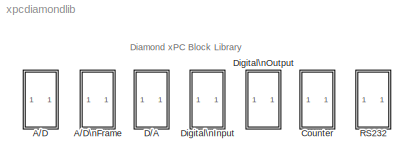
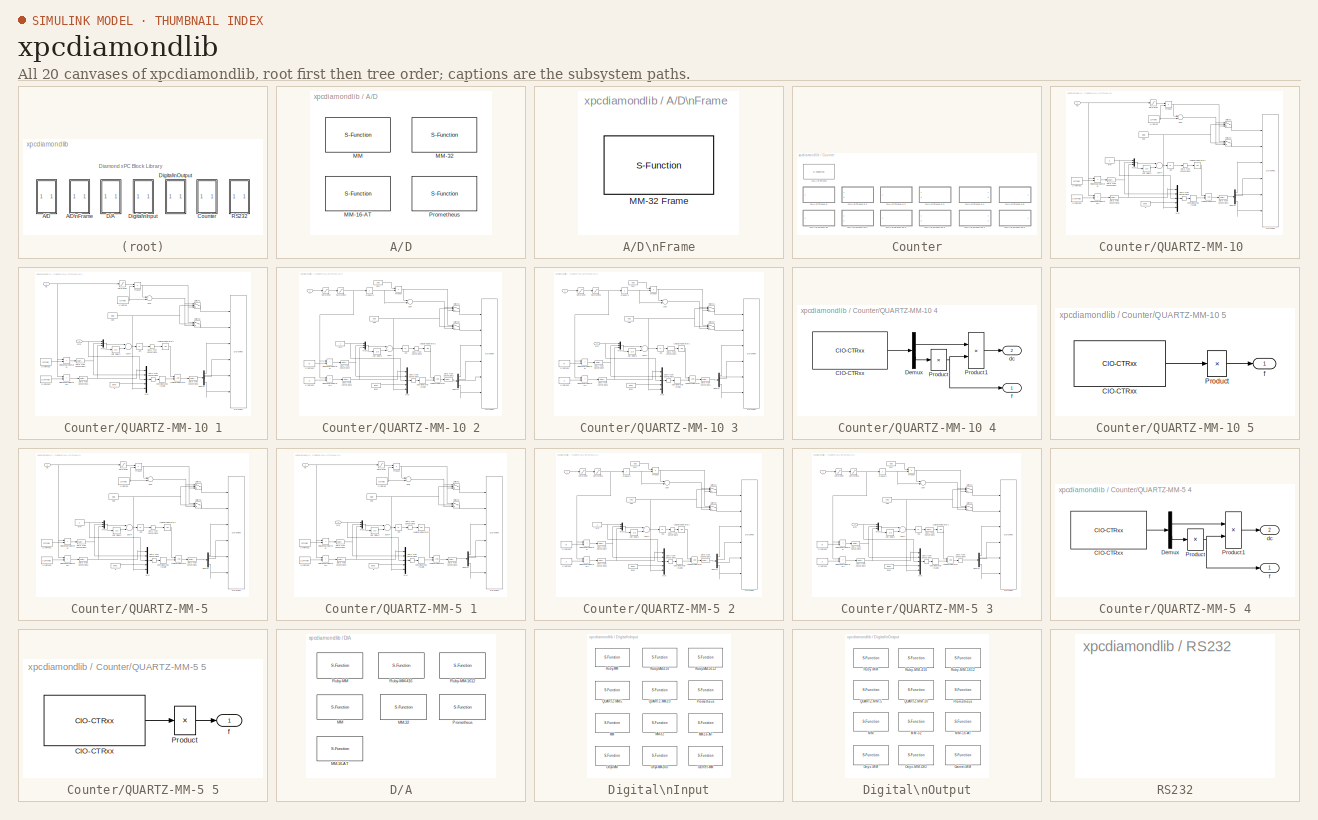
[diagram: thumbnail index - all 20 canvases of the model, root first then tree order]
MODEL xpcdiamondlib
KIND library
BLOCK [SubSystem] A//D
  MinAlgLoopOccurrences = off
  Ports = []
  PropExecContextAcrossSSBoundary = on
  RTWSystemCode = Auto
  TreatAsAtomicUnit = off
BLOCK [S-Function] A//D/MM 
  FunctionName = addiamondmm
  InitFcn = maddiamondmm(1)
  MaskCallbackString = |||||
  MaskDescription = MM\nDiamond\nAnalog Input
  MaskDisplay = disp('MM\\nDiamond\\nAnalog Input'); port_label('output', 1, '1');
  MaskEnableString = on,on,on,on,on,on
  MaskHelp = helpview(fullfile(docroot, 'mapfiles', 'xpc.map'), 'Diamond_MM_AD')
  MaskIconFrame = on
  MaskIconOpaque = on
  MaskIconRotate = none
  MaskIconUnits = autoscale
  MaskInitialization = phase = 2;\n[gain, offset, baseDec, maskDisplay, maskDescription] = maddiamondmm(phase, numChans, range, coupling, showStatus, sampleTime, base);\nset_param(gcb, 'MaskDescription', maskDescription);\nset_param(gcb, 'MaskDisplay', maskDisplay);\n\n\n
  MaskPromptString = Number of channels:|Range:|Coupling:|Show error status output (E)|Sample time:|Base address (e.g. 0x300):
  MaskSelfModifiable = on
  MaskStyleString = edit,popup(0 to 10V|0 to 5V|0 to 2V|0 to 1V|0 to Custom|-10V to 10V|-5V to 5V|-2.5V to 2.5V|-1V to 1V|-0.5V to 0.5V|-Custom to Custom),popup(16 single-ended channels|8 differential channels),checkbox,edit,edit
  MaskTabNameString = ,,,,,
  MaskToolTipString = on,on,on,on,on,on
  MaskTunableValueString = on,on,on,on,on,on
  MaskType = addiamondmm
  MaskValueString = 1|-5V to 5V|16 single-ended channels|off|0.001|0x300
  MaskVarAliasString = ,,,,,
  MaskVariables = numChans=@1;range=@2;coupling=@3;showStatus=@4;sampleTime=@5;base=&6;
  MaskVisibilityString = on,on,on,on,on,on
  Parameters = numChans,  gain, offset, showStatus, sampleTime, baseDec
  Ports = [0, 1]
BLOCK [S-Function] A//D/MM-16-AT 
  FunctionName = addsmm16at
  InitFcn = maddsmm16at(1)
  MaskCallbackString = ||||||
  MaskDescription = MM-16-AT\nDiamond\nAnalog Input
  MaskDisplay = disp('MM-16-AT\\nDiamond\\nAnalog Input'); port_label('output', 1, '1');
  MaskEnableString = on,on,on,on,on,on,on
  MaskHelp = helpview(fullfile(docroot, 'mapfiles', 'xpc.map'), 'Diamond_MM-16-AT_AD')
  MaskIconFrame = on
  MaskIconOpaque = on
  MaskIconRotate = none
  MaskIconUnits = autoscale
  MaskInitialization = phase = 2;\n[gain, offset, rangeCode, baseDec, maskDisplay, maskDescription] = maddsmm16at(phase, firstChan, numChans, range, coupling, showStatus, sampleTime, base);\nset_param(gcb, 'MaskDescription', maskDescription);\nset_param(gcb, 'MaskDisplay', maskDisplay);\n\n\n
  MaskPromptString = First channel:|Number of channels:|Range:|Coupling:|Show error status output (E)|Sample time:|Base address (e.g. 0x300):
  MaskSelfModifiable = on
  MaskStyleString = edit,edit,popup(0 to 10V|0 to 5V|0 to 2.5V|0 to 1.25V|-10V to 10V|-5V to 5V|-2.5V to 2.5V|-1.25V to 1.25V|-0.625V to 0.625V),popup(16 single-ended channels|8 differential channels),checkbox,edit,edit
  MaskTabNameString = ,,,,,,
  MaskToolTipString = on,on,on,on,on,on,on
  MaskTunableValueString = on,on,on,on,on,on,on
  MaskType = addiamondmm16at
  MaskValueString = 1|1|-5V to 5V|16 single-ended channels|off|0.001|0x300
  MaskVarAliasString = ,,,,,,
  MaskVariables = firstChan=@1;numChans=@2;range=@3;coupling=@4;showStatus=@5;sampleTime=@6;base=&7;
  MaskVisibilityString = on,on,on,on,on,on,on
  Parameters = firstChan, numChans,  gain, offset, rangeCode, showStatus, sampleTime, baseDec
  Ports = [0, 1]
BLOCK [S-Function] A//D/MM-32 
  FunctionName = addiamondmm32
  InitFcn = maddiamondmm32(1)
  MaskCallbackString = |||||
  MaskDescription = MM-32\nDiamond\nAnalog Input
  MaskDisplay = disp('MM-32\\nDiamond\\nAnalog Input'); port_label('output', 1, '1');
  MaskEnableString = on,on,on,on,on,on
  MaskHelp = helpview(fullfile(docroot, 'mapfiles', 'xpc.map'), 'Diamond_MM-32_AD')
  MaskIconFrame = on
  MaskIconOpaque = on
  MaskIconRotate = none
  MaskIconUnits = autoscale
  MaskInitialization = phase = 2;\n[baseDec, maskDisplay, maskDescription] = maddiamondmm32(phase, configuration, firstChan, numChans, range, base);\nset_param(gcb, 'MaskDescription', maskDescription);\nset_param(gcb, 'MaskDisplay', maskDisplay);\n\n\n
  MaskPromptString = Channel configuration|First channel number:|Number of channels:|Range |Sample time:|Base address (e.g. 0xd000):
  MaskSelfModifiable = on
  MaskStyleString = popup(1-32 SE|1-16 DI|1-8 SE  9-16 DI  17-24 SE ),edit,edit,popup(-10V to +10V|-5V to 5V|-2.5V to +2.5V|-1.25V to +1.25V|-0.625V to +0.625V|0 to 10V|0 to 5V|0 to 2.5V|0 to 1.25V),edit,edit
  MaskTabNameString = ,,,,,
  MaskToolTipString = on,on,on,on,on,on
  MaskTunableValueString = on,on,on,on,on,on
  MaskType = addiamondmm32
  MaskValueString = 1-32 SE|1|1|-10V to +10V|0.001|0x300
  MaskVarAliasString = ,,,,,
  MaskVariables = configuration=@1;firstChan=@2;numChans=@3;range=@4;sampleTime=@5;base=&6;
  MaskVisibilityString = on,on,on,on,on,on
  Parameters = firstChan, numChans,  range,  sampleTime, baseDec
  Ports = [0, 1]
BLOCK [S-Function] A//D/Prometheus 
  FunctionName = adprometheus
  InitFcn = madprometheus(1)
  MaskCallbackString = ||||||
  MaskDescription = Prometheus\nDiamond\nAnalog Input
  MaskDisplay = disp('Prometheus\\nDiamond\\nAnalog Input'); port_label('output', 1, '1');
  MaskEnableString = on,on,on,on,on,on,on
  MaskHelp = helpview(fullfile(docroot, 'mapfiles', 'xpc.map'), 'Diamond_Prometheus_AD')
  MaskIconFrame = on
  MaskIconOpaque = on
  MaskIconRotate = none
  MaskIconUnits = autoscale
  MaskInitialization = phase = 2;\n[gain, offset, control, baseDec, maskDisplay, maskDescription] = madprometheus(phase, firstChannel, numChannels, range, mux, base, showStatus);\nset_param(gcb, 'MaskDescription', maskDescription);\nset_param(gcb, 'MaskDisplay', maskDisplay);\n
  MaskPromptString = First channel:|Number of channels:|Range (J13 setting)|Input coupling (J13 setting)|Show error status output port (E)|Sample time:|Base address (e.g. 0x280):
  MaskSelfModifiable = on
  MaskStyleString = edit,edit,popup(+-10V|+-5V|+-2.5V|+-1.25V|0-10V|0-5V|0-2.5V),popup(Single Ended (16 channel)|Differential (8 channel)),checkbox,edit,edit
  MaskTabNameString = ,,,,,,
  MaskToolTipString = on,on,on,on,on,on,on
  MaskTunableValueString = on,on,on,on,on,on,on
  MaskType = adprometheus
  MaskValueString = 1|1|+-10V|Single Ended (16 channel)|off|.001|0x280
  MaskVarAliasString = ,,,,,,
  MaskVariables = firstChannel=@1;numChannels=@2;range=@3;mux=@4;showStatus=@5;sampleTime=@6;base=&7;
  MaskVisibilityString = on,on,on,on,on,on,on
  Parameters = firstChannel, numChannels, gain, offset, control, sampleTime, baseDec, showStatus
  Ports = [0, 1]
BLOCK [SubSystem] A//D\nFrame
  MinAlgLoopOccurrences = off
  Ports = []
  PropExecContextAcrossSSBoundary = on
  RTWSystemCode = Auto
  TreatAsAtomicUnit = off
BLOCK [S-Function] A//D\nFrame/MM-32 Frame 
  FunctionName = addiamondmm32frame
  InitFcn = maddiamondmm32frame(1);
  MaskCallbackString = ||||||||
  MaskDescription = MM-32 Frame\nDiamond\nAnalog Input
  MaskDisplay = disp('MM-32 Frame\\nDiamond\\nAnalog Input'); port_label('output', 1, '1');
  MaskEnableString = on,on,on,on,on,on,on,on,on
  MaskHelp = helpview(fullfile(docroot, 'mapfiles', 'xpc.map'), 'Diamond_MM-32-Frame_AD')
  MaskIconFrame = on
  MaskIconOpaque = on
  MaskIconRotate = none
  MaskIconUnits = autoscale
  MaskInitialization = phase = 2;\n[freq12, count1, count2, baseDec, maskDisplay, maskDescription] = ...\n	maddiamondmm32frame(phase, configuration, firstChan, numChans, numScans, scanInterval, scanTime, base);\nset_param(gcb, 'MaskDescription', maskDescription);\nset_param(gcb, 'MaskDisplay', maskDisplay);\n\n\n
  MaskPromptString = Channel configuration|Output signal type|Range |First channel number:|Number of channels:|Number of scans per frame:|Interval between conversions within a scan:|Interval between scans (seconds):|Base address (e.g. 0x300):
  MaskSelfModifiable = on
  MaskStyleString = popup(1-32 Single-Ended|1-16 Differential|1-8 and 17-24 Single-Ended;  9-16 Differential),popup(Vector|Frame),popup(-10V to +10V|-5V to 5V|-2.5V to +2.5V|-1.25V to +1.25V|-0.625V to +0.625V|0 to 10V|0 to 5V|0 to 2.5V|0 to 1.25V),edit,edit,edit,popup(5 microseconds|10 microseconds|15 microseconds|20 microseconds),edit,edit
  MaskTabNameString = ,,,,,,,,
  MaskToolTipString = on,on,on,on,on,on,on,on,on
  MaskTunableValueString = on,on,on,on,on,on,on,on,on
  MaskType = addiamondmm32
  MaskValueString = 1-32 Single-Ended|Vector|-10V to +10V|1|1|2|5 microseconds|0.001|0x300
  MaskVarAliasString = ,,,,,,,,
  MaskVariables = configuration=@1;outSigType=@2;range=@3;firstChan=@4;numChans=@5;numScans=@6;scanInterval=@7;scanTime=@8;base=&9;
  MaskVisibilityString = on,on,on,on,on,on,on,on,on
  Parameters = range,  firstChan, numChans,  numScans, scanInterval, freq12, count1, count2, outSigType, baseDec
  Ports = [0, 1]
  StartFcn = maddiamondmm32frame(1)
BLOCK [SubSystem] Counter
  MinAlgLoopOccurrences = off
  Ports = []
  PropExecContextAcrossSSBoundary = on
  RTWSystemCode = Auto
  TreatAsAtomicUnit = off
BLOCK [S-Function] Counter/QUARTZ-MM 
  FunctionName = ctramd9513isa
  MaskCallbackString = ||||||
  MaskDescription = QUARTZ-MM\nDiamond Systems\nAMD9513 Counter
  MaskDisplay = disp('AMD9513\\nCounter')
  MaskEnableString = on,on,on,on,on,on,on
  MaskHelp = helpview(fullfile(docroot, 'mapfiles', 'xpc.map'), 'Diamond_QUARTZ-MM_Counter')
  MaskIconFrame = on
  MaskIconOpaque = on
  MaskIconRotate = none
  MaskIconUnits = autoscale
  MaskInitialization = baseAddress=hex2dec(baseAddress(3:end));\n[io,mm, cms, initir, ir, termir]=mamd9513parse(mastermode, countermode, init, commands, term);
  MaskPromptString = Master mode structure:|Counter mode structure:|Initialization command structure:|Runtime command structure:|Termination command structure:|Sample time:|9513 chip base address (i.e. 0xd000):
  MaskSelfModifiable = on
  MaskStyleString = edit,edit,edit,edit,edit,edit,edit
  MaskTabNameString = ,,,,,,
  MaskToolTipString = on,on,on,on,on,on,on
  MaskTunableValueString = on,on,on,on,on,on,on
  MaskType = quartzmm10
  MaskValueString = []|[]|[]|[]|[]|0.001|'0x300'
  MaskVarAliasString = ,,,,,,
  MaskVariables = mastermode=@1;countermode=@2;init=@3;commands=@4;term=@5;ts=@6;baseAddress=@7;
  MaskVisibilityString = on,on,on,on,on,on,on
  Parameters = io, mm, cms, initir, ir, termir, ts, baseAddress
  Ports = []
BLOCK [SubSystem] Counter/QUARTZ-MM-10 
  MaskCallbackString = ||||||
  MaskDescription = QUARTZ-MM-10\nDiamond Systems\nPWM
  MaskDisplay = text(0.95,0.75,'QUARTZ-MM-10','horizontalAlignment','right');text(0.95,0.50,'Diamond Sys','horizontalAlignment','right');text(0.95,0.25,'PWM','horizontalAlignment','right');port_label('input',1,[num2str(counterin),' (dc)'] );
  MaskEnableString = on,on,on,on,on,on,on
  MaskHelp = helpview(fullfile(docroot, 'mapfiles', 'xpc.map'), 'Diamond_QUARTZ-MM-10_Counter')
  MaskIconFrame = on
  MaskIconOpaque = on
  MaskIconRotate = none
  MaskIconUnits = normalized
  MaskInitialization = init_arm=0;\ninitduty=0.5;\ncounter=counterin;\nif counter>5\ncounter=counter-5;\nbaseAddress=['0x',dec2hex(hex2dec(baseAddress(3:end))+4)];\nend;\n[MasterMode, CounterMode, Init, Runtime, Term] =pwmarm_amd9513(counter, freq_base, freq, initduty, level, init_arm);\nlevel=level-1;\nseq=seq-1;  <repeated x4 — deduplicated; at blocks: QUARTZ-MM-10, QUARTZ-MM-10 1, QUARTZ-MM-5, QUARTZ-MM-5 1>
  MaskPromptString = Counter:|Frequency base:|Relative output frequency:|Level sequence of square wave:|Level when disarmed:|Sample time:|Base address (i.e. 0xd000):
  MaskSelfModifiable = on
  MaskStyleString = popup(1|2|3|4|5|6|7|8|9|10),popup(F1=4MHz|F2=400KHz|F3=40kHz|F4=4kHz|F5=400Hz),edit,popup(High - Low|Low- High),popup(Low|High),edit,edit
  MaskTabNameString = ,,,,,,
  MaskToolTipString = on,on,on,on,on,on,on
  MaskTunableValueString = on,on,on,on,on,on,on
  MaskType = PWM
  MaskValueString = 1|F1=4MHz|0.001|High - Low|High|0.001|0x300
  MaskVarAliasString = ,,,,,,
  MaskVariables = counterin=@1;freq_base=@2;freq=@3;seq=@4;level=@5;Ts=@6;baseAddress=&7;
  MaskVisibilityString = on,on,on,on,on,on,on
  MinAlgLoopOccurrences = off
  Ports = [1]
  PropExecContextAcrossSSBoundary = on
  RTWSystemCode = Auto
  TreatAsAtomicUnit = off
BLOCK [Constant] Counter/QUARTZ-MM-10 /1//relFreq
  Value = 1/freq
BLOCK [Constant] Counter/QUARTZ-MM-10 /1//relFreq1
  Value = 2*freq
BLOCK [Constant] Counter/QUARTZ-MM-10 /1//relFreq2
  Value = 1-2*freq
BLOCK [Abs] Counter/QUARTZ-MM-10 /Abs
BLOCK [Reference] Counter/QUARTZ-MM-10 /CIO-CTRxx   REF=xpcmeasurementcomputinglib/Counter/CIO-CTRxx 
  Ports = [6]
  SourceBlock = xpcmeasurementcomputinglib/Counter/CIO-CTRxx
  SourceType = cioctrxx
  baseAddress = baseAddress
  commands = Runtime
  countermode = CounterMode
  init = Init
  mastermode = MasterMode
  term = Term
  ts = Ts
BLOCK [CombinatorialLogic] Counter/QUARTZ-MM-10 /Combinatorial \nLogic
  TruthTable = [0,0,1,0;0,0,1,0;0,0,0,1;0,0,0,1;0,1,0,0;1,0,0,0;0,1,0,0;1,0,0,0;0,0,1,0;0,0,1,0;0,0,0,1;0,0,0,1;0,0,1,0;0,0,1,0;0,0,1,0;0,0,1,0;0,0,1,0;0,0,1,0;0,0,0,1;0,0,0,1;0,0,0,1;0,0,0,1;0,0,0,1;0,0,0,1;0,0,0,0;0,0,0,0;0,0,0,0;0,0,0,0;0,0,0,0;0,0,0,0;0,0,0,0;0,0,0,0]  <repeated x8 — deduplicated; at blocks: Combinatorial \nLogic>
BLOCK [DataTypeConversion] Counter/QUARTZ-MM-10 /Data Type Conversion1
BLOCK [DataTypeConversion] Counter/QUARTZ-MM-10 /Data Type Conversion2
BLOCK [DataTypeConversion] Counter/QUARTZ-MM-10 /Data Type Conversion3
BLOCK [DataTypeConversion] Counter/QUARTZ-MM-10 /Data Type Conversion4
  OutDataTypeMode = double
BLOCK [DataTypeConversion] Counter/QUARTZ-MM-10 /Data Type Conversion5
  OutDataTypeMode = double
BLOCK [Demux] Counter/QUARTZ-MM-10 /Demux
  Ports = [1, 4]
BLOCK [Logic] Counter/QUARTZ-MM-10 /Logical\nOperator
  Ports = [2, 1]
BLOCK [Logic] Counter/QUARTZ-MM-10 /Logical\nOperator1
  Inputs = 1
  Operator = OR
  Ports = [1, 1]
BLOCK [Mux] Counter/QUARTZ-MM-10 /Mux
  DisplayOption = bar
  Inputs = 5
  Ports = [5, 1]
BLOCK [Mux] Counter/QUARTZ-MM-10 /Mux1
  DisplayOption = bar
  Inputs = 3
  Ports = [3, 1]
BLOCK [Product] Counter/QUARTZ-MM-10 /Product
  Ports = [2, 1]
  RndMeth = Floor
BLOCK [RelationalOperator] Counter/QUARTZ-MM-10 /Relational\nOperator
  Operator = <
BLOCK [RelationalOperator] Counter/QUARTZ-MM-10 /Relational\nOperator1
  Operator = >
BLOCK [Saturate] Counter/QUARTZ-MM-10 /Saturation
  LowerLimit = 2*freq
  UpperLimit = 1-2*freq
  ZeroCross = off
BLOCK [Sum] Counter/QUARTZ-MM-10 /Sum
  Inputs = -+
  Ports = [2, 1]
BLOCK [Sum] Counter/QUARTZ-MM-10 /Sum4
  Inputs = +-
  Ports = [2, 1]
BLOCK [Switch] Counter/QUARTZ-MM-10 /Switch1
  SaturateOnIntegerOverflow = off
  Threshold = 0.5
BLOCK [Switch] Counter/QUARTZ-MM-10 /Switch2
  SaturateOnIntegerOverflow = off
  Threshold = 0.5
BLOCK [UnitDelay] Counter/QUARTZ-MM-10 /Unit Delay2
  SampleTime = Ts
  X0 = 2
BLOCK [Constant] Counter/QUARTZ-MM-10 /arm
BLOCK [Inport] Counter/QUARTZ-MM-10 /dc
  IconDisplay = Port number
  LatchInput = off
BLOCK [Constant] Counter/QUARTZ-MM-10 /g
  Value = level
BLOCK [Constant] Counter/QUARTZ-MM-10 /seq
  Value = seq
BLOCK [SubSystem] Counter/QUARTZ-MM-10 1
  MaskCallbackString = ||||||
  MaskDescription = QUARTZ-MM-10\nDiamond Systems\nPWM & ARM
  MaskDisplay = text(0.95,0.75,'QUARTZ-MM-10','horizontalAlignment','right');text(0.95,0.50,'Diamond Sys','horizontalAlignment','right');text(0.95,0.25,'PWM & ARM','horizontalAlignment','right');port_label('input',1,[num2str(counterin),' (dc)'] );port_label('input',2,[num2str(counterin),' (arm)'] );
  MaskEnableString = on,on,on,on,on,on,on
  MaskHelp = helpview(fullfile(docroot, 'mapfiles', 'xpc.map'), 'Diamond_QUARTZ-MM-10-1_Counter')
  MaskIconFrame = on
  MaskIconOpaque = on
  MaskIconRotate = none
  MaskIconUnits = normalized
  MaskPromptString = Counter:|Frequency base:|Relative output frequency:|Level sequence of square wave:|Level when disarmed:|Sample time:|Base address (i.e. 0xd000):
  MaskSelfModifiable = on
  MaskStyleString = popup(1|2|3|4|5|6|7|8|9|10),popup(F1=4MHz|F2=400KHz|F3=40kHz|F4=4kHz|F5=400Hz),edit,popup(High - Low|Low- High),popup(Low|High),edit,edit
  MaskTabNameString = ,,,,,,
  MaskToolTipString = on,on,on,on,on,on,on
  MaskTunableValueString = on,on,on,on,on,on,on
  MaskType = PWM
  MaskValueString = 1|F1=4MHz|0.001|High - Low|High|0.001|0x300
  MaskVarAliasString = ,,,,,,
  MaskVariables = counterin=@1;freq_base=@2;freq=@3;seq=@4;level=@5;Ts=@6;baseAddress=&7;
  MaskVisibilityString = on,on,on,on,on,on,on
  MinAlgLoopOccurrences = off
  Ports = [2]
  PropExecContextAcrossSSBoundary = on
  RTWSystemCode = Auto
  TreatAsAtomicUnit = off
BLOCK [Constant] Counter/QUARTZ-MM-10 1/1//relFreq
  Value = 1/freq
BLOCK [Constant] Counter/QUARTZ-MM-10 1/1//relFreq1
  Value = 2*freq
BLOCK [Constant] Counter/QUARTZ-MM-10 1/1//relFreq2
  Value = 1-2*freq
BLOCK [Abs] Counter/QUARTZ-MM-10 1/Abs
BLOCK [Reference] Counter/QUARTZ-MM-10 1/CIO-CTRxx   REF=xpcmeasurementcomputinglib/Counter/CIO-CTRxx 
  Ports = [6]
  SourceBlock = xpcmeasurementcomputinglib/Counter/CIO-CTRxx
  SourceType = cioctrxx
  baseAddress = baseAddress
  commands = Runtime
  countermode = CounterMode
  init = Init
  mastermode = MasterMode
  term = Term
  ts = Ts
BLOCK [CombinatorialLogic] Counter/QUARTZ-MM-10 1/Combinatorial \nLogic
BLOCK [DataTypeConversion] Counter/QUARTZ-MM-10 1/Data Type Conversion1
  OutDataTypeMode = double
BLOCK [DataTypeConversion] Counter/QUARTZ-MM-10 1/Data Type Conversion2
BLOCK [DataTypeConversion] Counter/QUARTZ-MM-10 1/Data Type Conversion3
BLOCK [DataTypeConversion] Counter/QUARTZ-MM-10 1/Data Type Conversion4
  OutDataTypeMode = double
BLOCK [DataTypeConversion] Counter/QUARTZ-MM-10 1/Data Type Conversion5
BLOCK [Demux] Counter/QUARTZ-MM-10 1/Demux
  Ports = [1, 4]
BLOCK [Logic] Counter/QUARTZ-MM-10 1/Logical\nOperator
  Ports = [2, 1]
BLOCK [Logic] Counter/QUARTZ-MM-10 1/Logical\nOperator1
  Inputs = 1
  Operator = OR
  Ports = [1, 1]
BLOCK [Mux] Counter/QUARTZ-MM-10 1/Mux
  DisplayOption = bar
  Inputs = 5
  Ports = [5, 1]
BLOCK [Mux] Counter/QUARTZ-MM-10 1/Mux1
  DisplayOption = bar
  Inputs = 3
  Ports = [3, 1]
BLOCK [Product] Counter/QUARTZ-MM-10 1/Product
  Ports = [2, 1]
  RndMeth = Floor
BLOCK [RelationalOperator] Counter/QUARTZ-MM-10 1/Relational\nOperator
  Operator = <
BLOCK [RelationalOperator] Counter/QUARTZ-MM-10 1/Relational\nOperator1
  Operator = >
BLOCK [Saturate] Counter/QUARTZ-MM-10 1/Saturation
  LowerLimit = 2*freq
  UpperLimit = 1-2*freq
  ZeroCross = off
BLOCK [Sum] Counter/QUARTZ-MM-10 1/Sum
  Inputs = -+
  Ports = [2, 1]
BLOCK [Sum] Counter/QUARTZ-MM-10 1/Sum4
  Inputs = +-
  Ports = [2, 1]
BLOCK [Switch] Counter/QUARTZ-MM-10 1/Switch1
  SaturateOnIntegerOverflow = off
  Threshold = 0.5
BLOCK [Switch] Counter/QUARTZ-MM-10 1/Switch2
  SaturateOnIntegerOverflow = off
  Threshold = 0.5
BLOCK [UnitDelay] Counter/QUARTZ-MM-10 1/Unit Delay2
  SampleTime = Ts
  X0 = 2
BLOCK [Inport] Counter/QUARTZ-MM-10 1/arm
  IconDisplay = Port number
  LatchInput = off
  Port = 2
BLOCK [Inport] Counter/QUARTZ-MM-10 1/dc
  IconDisplay = Port number
  LatchInput = off
BLOCK [Constant] Counter/QUARTZ-MM-10 1/g
  Value = level
BLOCK [Constant] Counter/QUARTZ-MM-10 1/seq
  Value = seq
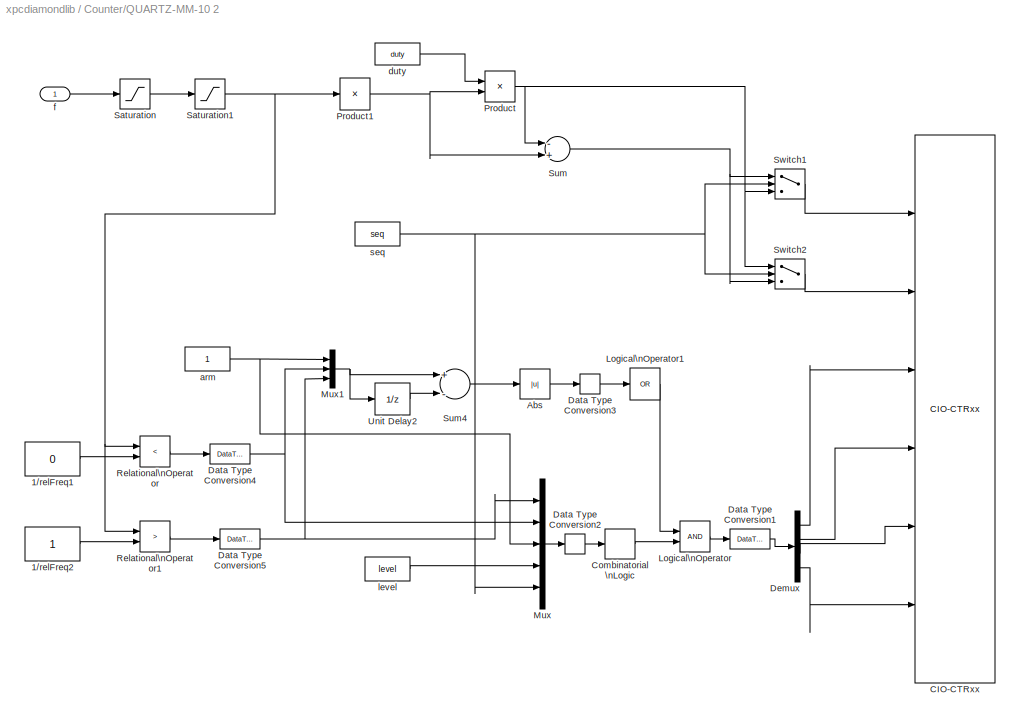
BLOCK [SubSystem] Counter/QUARTZ-MM-10 2
  MaskCallbackString = ||||||
  MaskDescription = QUARTZ-MM-10\nDiamond Systems\nFM
  MaskDisplay = text(0.95,0.75,'QUARTZ-MM-10','horizontalAlignment','right');text(0.95,0.50,'Diamond Sys','horizontalAlignment','right');text(0.95,0.25,'FM','horizontalAlignment','right');port_label('input',1,[num2str(counterin),' (f)'] );
  MaskEnableString = on,on,on,on,on,on,on
  MaskHelp = helpview(fullfile(docroot, 'mapfiles', 'xpc.map'), 'Diamond_QUARTZ-MM-10-2_Counter')
  MaskIconFrame = on
  MaskIconOpaque = on
  MaskIconRotate = none
  MaskIconUnits = normalized
  MaskInitialization = init_arm=0;\ninitfreq=0.005;\ncounter=counterin;\nif counter>5\ncounter=counter-5;\nbaseAddress=['0x',dec2hex(hex2dec(baseAddress(3:end))+4)];\nend;\n[MasterMode, CounterMode, Init, Runtime, Term] =fmarm_amd9513(counter, freq_base, duty, initfreq, level, init_arm);\nlevel=level-1;\nseq=seq-1;  <repeated x4 — deduplicated; at blocks: QUARTZ-MM-10 2, QUARTZ-MM-10 3, QUARTZ-MM-5 2, QUARTZ-MM-5 3>
  MaskPromptString = Counter:|Frequency base:|Output duty cycle:|Level sequence of square wave:|Level when disarmed:|Sample time:|Base address (i.e. 0xd000):
  MaskSelfModifiable = on
  MaskStyleString = popup(1|2|3|4|5|6|7|8|9|10),popup(F1=4MHz|F2=400KHz|F3=40kHz|F4=4kHz|F5=400Hz),edit,popup(High - Low|Low- High),popup(Low|High),edit,edit
  MaskTabNameString = ,,,,,,
  MaskToolTipString = on,on,on,on,on,on,on
  MaskTunableValueString = on,on,on,on,on,on,on
  MaskType = PWM
  MaskValueString = 1|F1=4MHz|0.001|High - Low|High|0.001|0x300
  MaskVarAliasString = ,,,,,,
  MaskVariables = counterin=@1;freq_base=@2;duty=@3;seq=@4;level=@5;Ts=@6;baseAddress=&7;
  MaskVisibilityString = on,on,on,on,on,on,on
  MinAlgLoopOccurrences = off
  Ports = [1]
  PropExecContextAcrossSSBoundary = on
  RTWSystemCode = Auto
  TreatAsAtomicUnit = off
BLOCK [Constant] Counter/QUARTZ-MM-10 2/1//relFreq1
  Value = 0
BLOCK [Constant] Counter/QUARTZ-MM-10 2/1//relFreq2
BLOCK [Abs] Counter/QUARTZ-MM-10 2/Abs
BLOCK [Reference] Counter/QUARTZ-MM-10 2/CIO-CTRxx   REF=xpcmeasurementcomputinglib/Counter/CIO-CTRxx 
  Ports = [6]
  SourceBlock = xpcmeasurementcomputinglib/Counter/CIO-CTRxx
  SourceType = cioctrxx
  baseAddress = baseAddress
  commands = Runtime
  countermode = CounterMode
  init = Init
  mastermode = MasterMode
  term = Term
  ts = Ts
BLOCK [CombinatorialLogic] Counter/QUARTZ-MM-10 2/Combinatorial \nLogic
BLOCK [DataTypeConversion] Counter/QUARTZ-MM-10 2/Data Type Conversion1
BLOCK [DataTypeConversion] Counter/QUARTZ-MM-10 2/Data Type Conversion2
BLOCK [DataTypeConversion] Counter/QUARTZ-MM-10 2/Data Type Conversion3
BLOCK [DataTypeConversion] Counter/QUARTZ-MM-10 2/Data Type Conversion4
  OutDataTypeMode = double
BLOCK [DataTypeConversion] Counter/QUARTZ-MM-10 2/Data Type Conversion5
  OutDataTypeMode = double
BLOCK [Demux] Counter/QUARTZ-MM-10 2/Demux
  Ports = [1, 4]
BLOCK [Logic] Counter/QUARTZ-MM-10 2/Logical\nOperator
  Ports = [2, 1]
BLOCK [Logic] Counter/QUARTZ-MM-10 2/Logical\nOperator1
  Inputs = 1
  Operator = OR
  Ports = [1, 1]
BLOCK [Mux] Counter/QUARTZ-MM-10 2/Mux
  DisplayOption = bar
  Inputs = 5
  Ports = [5, 1]
BLOCK [Mux] Counter/QUARTZ-MM-10 2/Mux1
  DisplayOption = bar
  Inputs = 3
  Ports = [3, 1]
BLOCK [Product] Counter/QUARTZ-MM-10 2/Product
  Ports = [2, 1]
  RndMeth = Floor
BLOCK [Product] Counter/QUARTZ-MM-10 2/Product1
  Inputs = /
  Ports = [1, 1]
  RndMeth = Floor
BLOCK [RelationalOperator] Counter/QUARTZ-MM-10 2/Relational\nOperator
  Operator = <
BLOCK [RelationalOperator] Counter/QUARTZ-MM-10 2/Relational\nOperator1
  Operator = >
BLOCK [Saturate] Counter/QUARTZ-MM-10 2/Saturation
  LowerLimit = duty/(2^16-1)
  UpperLimit = duty/2
  ZeroCross = off
BLOCK [Saturate] Counter/QUARTZ-MM-10 2/Saturation1
  LowerLimit = (1-duty)/(2^16-1)
  UpperLimit = (1-duty)/2
  ZeroCross = off
BLOCK [Sum] Counter/QUARTZ-MM-10 2/Sum
  Inputs = -+
  Ports = [2, 1]
BLOCK [Sum] Counter/QUARTZ-MM-10 2/Sum4
  Inputs = +-
  Ports = [2, 1]
BLOCK [Switch] Counter/QUARTZ-MM-10 2/Switch1
  SaturateOnIntegerOverflow = off
  Threshold = 0.5
BLOCK [Switch] Counter/QUARTZ-MM-10 2/Switch2
  SaturateOnIntegerOverflow = off
  Threshold = 0.5
BLOCK [UnitDelay] Counter/QUARTZ-MM-10 2/Unit Delay2
  SampleTime = Ts
  X0 = 2
BLOCK [Constant] Counter/QUARTZ-MM-10 2/arm
BLOCK [Constant] Counter/QUARTZ-MM-10 2/duty
  Value = duty
BLOCK [Inport] Counter/QUARTZ-MM-10 2/f
  IconDisplay = Port number
  LatchInput = off
BLOCK [Constant] Counter/QUARTZ-MM-10 2/level
  Value = level
BLOCK [Constant] Counter/QUARTZ-MM-10 2/seq
  Value = seq
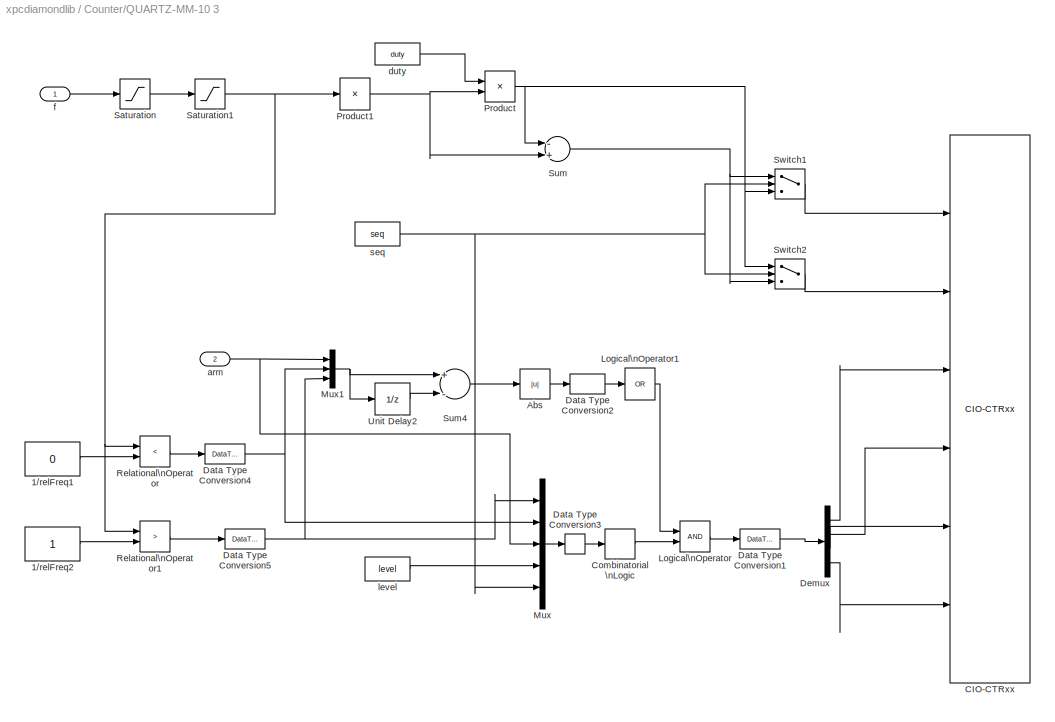
BLOCK [SubSystem] Counter/QUARTZ-MM-10 3
  MaskCallbackString = ||||||
  MaskDescription = QUARTZ-MM-10\nDiamond Systems\nFM & ARM
  MaskDisplay = text(0.95,0.75,'QUARTZ-MM-10','horizontalAlignment','right');text(0.95,0.50,'Diamond Sys','horizontalAlignment','right');text(0.95,0.25,'FM & ARM','horizontalAlignment','right');port_label('input',1,[num2str(counterin),' (f)'] );port_label('input',2,[num2str(counterin),' (arm)'] );
  MaskEnableString = on,on,on,on,on,on,on
  MaskHelp = helpview(fullfile(docroot, 'mapfiles', 'xpc.map'), 'Diamond_QUARTZ-MM-10-3_Counter')
  MaskIconFrame = on
  MaskIconOpaque = on
  MaskIconRotate = none
  MaskIconUnits = normalized
  MaskPromptString = Counter:|Frequency base:|Output duty cycle:|Level sequence of square wave:|Level when disarmed:|Sample time:|Base address (i.e. 0xd000):
  MaskSelfModifiable = on
  MaskStyleString = popup(1|2|3|4|5|6|7|8|9|10),popup(F1=4MHz|F2=400KHz|F3=40kHz|F4=4kHz|F5=400Hz),edit,popup(High - Low|Low- High),popup(Low|High),edit,edit
  MaskTabNameString = ,,,,,,
  MaskToolTipString = on,on,on,on,on,on,on
  MaskTunableValueString = on,on,on,on,on,on,on
  MaskType = FM
  MaskValueString = 1|F1=4MHz|0.001|High - Low|High|0.001|0x300
  MaskVarAliasString = ,,,,,,
  MaskVariables = counterin=@1;freq_base=@2;duty=@3;seq=@4;level=@5;Ts=@6;baseAddress=&7;
  MaskVisibilityString = on,on,on,on,on,on,on
  MinAlgLoopOccurrences = off
  Ports = [2]
  PropExecContextAcrossSSBoundary = on
  RTWSystemCode = Auto
  TreatAsAtomicUnit = off
BLOCK [Constant] Counter/QUARTZ-MM-10 3/1//relFreq1
  Value = 0
BLOCK [Constant] Counter/QUARTZ-MM-10 3/1//relFreq2
BLOCK [Abs] Counter/QUARTZ-MM-10 3/Abs
BLOCK [Reference] Counter/QUARTZ-MM-10 3/CIO-CTRxx   REF=xpcmeasurementcomputinglib/Counter/CIO-CTRxx 
  Ports = [6]
  SourceBlock = xpcmeasurementcomputinglib/Counter/CIO-CTRxx
  SourceType = cioctrxx
  baseAddress = baseAddress
  commands = Runtime
  countermode = CounterMode
  init = Init
  mastermode = MasterMode
  term = Term
  ts = Ts
BLOCK [CombinatorialLogic] Counter/QUARTZ-MM-10 3/Combinatorial \nLogic
BLOCK [DataTypeConversion] Counter/QUARTZ-MM-10 3/Data Type Conversion1
BLOCK [DataTypeConversion] Counter/QUARTZ-MM-10 3/Data Type Conversion2
BLOCK [DataTypeConversion] Counter/QUARTZ-MM-10 3/Data Type Conversion3
BLOCK [DataTypeConversion] Counter/QUARTZ-MM-10 3/Data Type Conversion4
  OutDataTypeMode = double
BLOCK [DataTypeConversion] Counter/QUARTZ-MM-10 3/Data Type Conversion5
  OutDataTypeMode = double
BLOCK [Demux] Counter/QUARTZ-MM-10 3/Demux
  Ports = [1, 4]
BLOCK [Logic] Counter/QUARTZ-MM-10 3/Logical\nOperator
  Ports = [2, 1]
BLOCK [Logic] Counter/QUARTZ-MM-10 3/Logical\nOperator1
  Inputs = 1
  Operator = OR
  Ports = [1, 1]
BLOCK [Mux] Counter/QUARTZ-MM-10 3/Mux
  DisplayOption = bar
  Inputs = 5
  Ports = [5, 1]
BLOCK [Mux] Counter/QUARTZ-MM-10 3/Mux1
  DisplayOption = bar
  Inputs = 3
  Ports = [3, 1]
BLOCK [Product] Counter/QUARTZ-MM-10 3/Product
  Ports = [2, 1]
  RndMeth = Floor
BLOCK [Product] Counter/QUARTZ-MM-10 3/Product1
  Inputs = /
  Ports = [1, 1]
  RndMeth = Floor
BLOCK [RelationalOperator] Counter/QUARTZ-MM-10 3/Relational\nOperator
  Operator = <
BLOCK [RelationalOperator] Counter/QUARTZ-MM-10 3/Relational\nOperator1
  Operator = >
BLOCK [Saturate] Counter/QUARTZ-MM-10 3/Saturation
  LowerLimit = duty/(2^16-1)
  UpperLimit = duty/2
  ZeroCross = off
BLOCK [Saturate] Counter/QUARTZ-MM-10 3/Saturation1
  LowerLimit = (1-duty)/(2^16-1)
  UpperLimit = (1-duty)/2
  ZeroCross = off
BLOCK [Sum] Counter/QUARTZ-MM-10 3/Sum
  Inputs = -+
  Ports = [2, 1]
BLOCK [Sum] Counter/QUARTZ-MM-10 3/Sum4
  Inputs = +-
  Ports = [2, 1]
BLOCK [Switch] Counter/QUARTZ-MM-10 3/Switch1
  SaturateOnIntegerOverflow = off
  Threshold = 0.5
BLOCK [Switch] Counter/QUARTZ-MM-10 3/Switch2
  SaturateOnIntegerOverflow = off
  Threshold = 0.5
BLOCK [UnitDelay] Counter/QUARTZ-MM-10 3/Unit Delay2
  SampleTime = Ts
  X0 = 2
BLOCK [Inport] Counter/QUARTZ-MM-10 3/arm
  IconDisplay = Port number
  LatchInput = off
  Port = 2
BLOCK [Constant] Counter/QUARTZ-MM-10 3/duty
  Value = duty
BLOCK [Inport] Counter/QUARTZ-MM-10 3/f
  IconDisplay = Port number
  LatchInput = off
BLOCK [Constant] Counter/QUARTZ-MM-10 3/level
  Value = level
BLOCK [Constant] Counter/QUARTZ-MM-10 3/seq
  Value = seq
BLOCK [SubSystem] Counter/QUARTZ-MM-10 4
  MaskCallbackString = |||
  MaskDescription = QUARTZ-MM-10\nDiamond Systems\nPWM capture
  MaskDisplay = text(0.05,0.75,'QUARTZ-MM-10','horizontalAlignment','left');text(0.05,0.50,'Diamond Sys','horizontalAlignment','left');text(0.05,0.25,'PWM capture','horizontalAlignment','left');port_label('output',1,[num2str(counterdisp),' (f)'] );port_label('output',2,[num2str(counterdisp+1),' (dc)'] );
  MaskEnableString = on,on,on,on
  MaskHelp = helpview(fullfile(docroot, 'mapfiles', 'xpc.map'), 'Diamond_QUARTZ-MM-10-4_Counter')
  MaskIconFrame = on
  MaskIconOpaque = on
  MaskIconRotate = none
  MaskIconUnits = normalized
  MaskInitialization = counter = counterin;\ncounterdisp = counterin;\nif counter > 4\ncounter = counter - 4;\ncounterdisp = counterdisp + 1;\nbaseAddress=['0x',dec2hex(hex2dec(baseAddress(3:end))+4)];\nend;\n[MasterMode, CounterMode, Init, Runtime, Term] =pwmcap_amd9513(counter, freq_base);\n
  MaskPromptString = Counter:|Frequency base:|Sample time:|Base address (i.e. 0xd000):
  MaskSelfModifiable = on
  MaskStyleString = popup(1&2|2&3|3&4|4&5|6&7|7&8|8&9|9&10),popup(F1=4MHz|F2=400KHz|F3=40kHz|F4=4kHz|F5=400Hz),edit,edit
  MaskTabNameString = ,,,
  MaskToolTipString = on,on,on,on
  MaskTunableValueString = on,on,on,on
  MaskType = PWMcap
  MaskValueString = 1&2|F1=4MHz|0.001|0x300
  MaskVarAliasString = ,,,
  MaskVariables = counterin=@1;freq_base=@2;Ts=@3;baseAddress=&4;
  MaskVisibilityString = on,on,on,on
  MinAlgLoopOccurrences = off
  Ports = [0, 2]
  PropExecContextAcrossSSBoundary = on
  RTWSystemCode = Auto
  TreatAsAtomicUnit = off
BLOCK [Reference] Counter/QUARTZ-MM-10 4/CIO-CTRxx   REF=xpcmeasurementcomputinglib/Counter/CIO-CTRxx 
  Ports = [0, 1]
  SourceBlock = xpcmeasurementcomputinglib/Counter/CIO-CTRxx
  SourceType = cioctrxx
  baseAddress = baseAddress
  commands = Runtime
  countermode = CounterMode
  init = Init
  mastermode = MasterMode
  term = Term
  ts = Ts
BLOCK [Demux] Counter/QUARTZ-MM-10 4/Demux
  Outputs = 2
  Ports = [1, 2]
BLOCK [Product] Counter/QUARTZ-MM-10 4/Product
  Inputs = /
  Ports = [1, 1]
  RndMeth = Floor
BLOCK [Product] Counter/QUARTZ-MM-10 4/Product1
  Inputs = **
  Ports = [2, 1]
  RndMeth = Floor
BLOCK [Outport] Counter/QUARTZ-MM-10 4/dc
  BusOutputAsStruct = off
  IconDisplay = Port number
  Port = 2
BLOCK [Outport] Counter/QUARTZ-MM-10 4/f
  BusOutputAsStruct = off
  IconDisplay = Port number
BLOCK [SubSystem] Counter/QUARTZ-MM-10 5
  MaskCallbackString = |||
  MaskDescription = QUARTZ-MM-10\nDiamond Systems\nFrequency capture
  MaskDisplay = text(0.05,0.75,'QUARTZ-MM-10','horizontalAlignment','left');text(0.05,0.50,'Diamond Sys','horizontalAlignment','left');text(0.05,0.25,'Freq. capture','horizontalAlignment','left');port_label('output',1,[num2str(counterin),' (f)'] );
  MaskEnableString = on,on,on,on
  MaskHelp = helpview(fullfile(docroot, 'mapfiles', 'xpc.map'), 'Diamond_QUARTZ-MM-10-5_Counter')
  MaskIconFrame = on
  MaskIconOpaque = on
  MaskIconRotate = none
  MaskIconUnits = normalized
  MaskInitialization = counter=counterin;\nif counter>5\ncounter=counter-5;\nbaseAddress=['0x',dec2hex(hex2dec(baseAddress(3:end))+4)];\nend;\n[MasterMode, CounterMode, Init, Runtime, Term] =freqcap_amd9513(counter, freq_base);\n
  MaskPromptString = Counter:|Frequency base:|Sample time:|Base address (i.e. 0xd000):
  MaskSelfModifiable = on
  MaskStyleString = popup(1|2|3|4|5|6|7|8|9|10),popup(F1=4MHz|F2=400KHz|F3=40kHz|F4=4kHz|F5=400Hz),edit,edit
  MaskTabNameString = ,,,
  MaskToolTipString = on,on,on,on
  MaskTunableValueString = on,on,on,on
  MaskType = FREQcap
  MaskValueString = 1|F1=4MHz|0.001|0x300
  MaskVarAliasString = ,,,
  MaskVariables = counterin=@1;freq_base=@2;Ts=@3;baseAddress=&4;
  MaskVisibilityString = on,on,on,on
  MinAlgLoopOccurrences = off
  Ports = [0, 1]
  PropExecContextAcrossSSBoundary = on
  RTWSystemCode = Auto
  TreatAsAtomicUnit = off
BLOCK [Reference] Counter/QUARTZ-MM-10 5/CIO-CTRxx   REF=xpcmeasurementcomputinglib/Counter/CIO-CTRxx 
  Ports = [0, 1]
  SourceBlock = xpcmeasurementcomputinglib/Counter/CIO-CTRxx
  SourceType = cioctrxx
  baseAddress = baseAddress
  commands = Runtime
  countermode = CounterMode
  init = Init
  mastermode = MasterMode
  term = Term
  ts = Ts
BLOCK [Product] Counter/QUARTZ-MM-10 5/Product
  Inputs = /
  Ports = [1, 1]
  RndMeth = Floor
BLOCK [Outport] Counter/QUARTZ-MM-10 5/f
  BusOutputAsStruct = off
  IconDisplay = Port number
BLOCK [SubSystem] Counter/QUARTZ-MM-5 
  MaskCallbackString = ||||||
  MaskDescription = QUARTZ-MM-5\nDiamond Systems\nPWM
  MaskDisplay = text(0.95,0.75,'QUARTZ-MM-5','horizontalAlignment','right');text(0.95,0.50,'Diamond Sys','horizontalAlignment','right');text(0.95,0.25,'PWM','horizontalAlignment','right');port_label('input',1,[num2str(counterin),' (dc)'] );
  MaskEnableString = on,on,on,on,on,on,on
  MaskHelp = helpview(fullfile(docroot, 'mapfiles', 'xpc.map'), 'Diamond_QUARTZ-MM-5_Counter')
  MaskIconFrame = on
  MaskIconOpaque = on
  MaskIconRotate = none
  MaskIconUnits = normalized
  MaskPromptString = Counter:|Frequency base:|Relative output frequency:|Level sequence of square wave:|Level when disarmed:|Sample time:|Base address (i.e. 0xd000):
  MaskSelfModifiable = on
  MaskStyleString = popup(1|2|3|4|5),popup(F1=4MHz|F2=400KHz|F3=40kHz|F4=4kHz|F5=400Hz),edit,popup(High - Low|Low- High),popup(Low|High),edit,edit
  MaskTabNameString = ,,,,,,
  MaskToolTipString = on,on,on,on,on,on,on
  MaskTunableValueString = on,on,on,on,on,on,on
  MaskType = PWM
  MaskValueString = 1|F1=4MHz|0.001|High - Low|High|0.001|0x300
  MaskVarAliasString = ,,,,,,
  MaskVariables = counterin=@1;freq_base=@2;freq=@3;seq=@4;level=@5;Ts=@6;baseAddress=&7;
  MaskVisibilityString = on,on,on,on,on,on,on
  MinAlgLoopOccurrences = off
  Ports = [1]
  PropExecContextAcrossSSBoundary = on
  RTWSystemCode = Auto
  TreatAsAtomicUnit = off
BLOCK [Constant] Counter/QUARTZ-MM-5 /1//relFreq
  Value = 1/freq
BLOCK [Constant] Counter/QUARTZ-MM-5 /1//relFreq1
  Value = 2*freq
BLOCK [Constant] Counter/QUARTZ-MM-5 /1//relFreq2
  Value = 1-2*freq
BLOCK [Abs] Counter/QUARTZ-MM-5 /Abs
BLOCK [Reference] Counter/QUARTZ-MM-5 /CIO-CTRxx   REF=xpcmeasurementcomputinglib/Counter/CIO-CTRxx 
  Ports = [6]
  SourceBlock = xpcmeasurementcomputinglib/Counter/CIO-CTRxx
  SourceType = cioctrxx
  baseAddress = baseAddress
  commands = Runtime
  countermode = CounterMode
  init = Init
  mastermode = MasterMode
  term = Term
  ts = Ts
BLOCK [CombinatorialLogic] Counter/QUARTZ-MM-5 /Combinatorial \nLogic
BLOCK [DataTypeConversion] Counter/QUARTZ-MM-5 /Data Type Conversion1
BLOCK [DataTypeConversion] Counter/QUARTZ-MM-5 /Data Type Conversion2
  OutDataTypeMode = double
BLOCK [DataTypeConversion] Counter/QUARTZ-MM-5 /Data Type Conversion3
BLOCK [DataTypeConversion] Counter/QUARTZ-MM-5 /Data Type Conversion4
  OutDataTypeMode = double
BLOCK [DataTypeConversion] Counter/QUARTZ-MM-5 /Data Type Conversion5
BLOCK [Demux] Counter/QUARTZ-MM-5 /Demux
  Ports = [1, 4]
BLOCK [Logic] Counter/QUARTZ-MM-5 /Logical\nOperator
  Ports = [2, 1]
BLOCK [Logic] Counter/QUARTZ-MM-5 /Logical\nOperator1
  Inputs = 1
  Operator = OR
  Ports = [1, 1]
BLOCK [Mux] Counter/QUARTZ-MM-5 /Mux
  DisplayOption = bar
  Inputs = 5
  Ports = [5, 1]
BLOCK [Mux] Counter/QUARTZ-MM-5 /Mux1
  DisplayOption = bar
  Inputs = 3
  Ports = [3, 1]
BLOCK [Product] Counter/QUARTZ-MM-5 /Product
  Ports = [2, 1]
  RndMeth = Floor
BLOCK [RelationalOperator] Counter/QUARTZ-MM-5 /Relational\nOperator
  Operator = <
BLOCK [RelationalOperator] Counter/QUARTZ-MM-5 /Relational\nOperator1
  Operator = >
BLOCK [Saturate] Counter/QUARTZ-MM-5 /Saturation
  LowerLimit = 2*freq
  UpperLimit = 1-2*freq
  ZeroCross = off
BLOCK [Sum] Counter/QUARTZ-MM-5 /Sum
  Inputs = -+
  Ports = [2, 1]
BLOCK [Sum] Counter/QUARTZ-MM-5 /Sum4
  Inputs = +-
  Ports = [2, 1]
BLOCK [Switch] Counter/QUARTZ-MM-5 /Switch1
  SaturateOnIntegerOverflow = off
  Threshold = 0.5
BLOCK [Switch] Counter/QUARTZ-MM-5 /Switch2
  SaturateOnIntegerOverflow = off
  Threshold = 0.5
BLOCK [UnitDelay] Counter/QUARTZ-MM-5 /Unit Delay2
  SampleTime = Ts
  X0 = 2
BLOCK [Constant] Counter/QUARTZ-MM-5 /arm
BLOCK [Inport] Counter/QUARTZ-MM-5 /dc
  IconDisplay = Port number
  LatchInput = off
BLOCK [Constant] Counter/QUARTZ-MM-5 /g
  Value = level
BLOCK [Constant] Counter/QUARTZ-MM-5 /seq
  Value = seq
BLOCK [SubSystem] Counter/QUARTZ-MM-5 1
  MaskCallbackString = ||||||
  MaskDescription = QUARTZ-MM-5\nDiamond Systems\nPWM & ARM
  MaskDisplay = text(0.95,0.75,'QUARTZ-MM-5','horizontalAlignment','right');text(0.95,0.50,'Diamond Sys','horizontalAlignment','right');text(0.95,0.25,'PWM & ARM','horizontalAlignment','right');port_label('input',1,[num2str(counterin),' (dc)'] );port_label('input',2,[num2str(counterin),' (arm)'] );
  MaskEnableString = on,on,on,on,on,on,on
  MaskHelp = helpview(fullfile(docroot, 'mapfiles', 'xpc.map'), 'Diamond_QUARTZ-MM-5-1_Counter')
  MaskIconFrame = on
  MaskIconOpaque = on
  MaskIconRotate = none
  MaskIconUnits = normalized
  MaskPromptString = Counter:|Frequency base:|Relative output frequency:|Level sequence of square wave:|Level when disarmed:|Sample time:|Base address (i.e. 0xd000):
  MaskSelfModifiable = on
  MaskStyleString = popup(1|2|3|4|5),popup(F1=4MHz|F2=400KHz|F3=40kHz|F4=4kHz|F5=400Hz),edit,popup(High - Low|Low- High),popup(Low|High),edit,edit
  MaskTabNameString = ,,,,,,
  MaskToolTipString = on,on,on,on,on,on,on
  MaskTunableValueString = on,on,on,on,on,on,on
  MaskType = PWM
  MaskValueString = 1|F1=4MHz|0.001|High - Low|High|0.001|0x300
  MaskVarAliasString = ,,,,,,
  MaskVariables = counterin=@1;freq_base=@2;freq=@3;seq=@4;level=@5;Ts=@6;baseAddress=&7;
  MaskVisibilityString = on,on,on,on,on,on,on
  MinAlgLoopOccurrences = off
  Ports = [2]
  PropExecContextAcrossSSBoundary = on
  RTWSystemCode = Auto
  TreatAsAtomicUnit = off
BLOCK [Constant] Counter/QUARTZ-MM-5 1/1//relFreq
  Value = 1/freq
BLOCK [Constant] Counter/QUARTZ-MM-5 1/1//relFreq1
  Value = 2*freq
BLOCK [Constant] Counter/QUARTZ-MM-5 1/1//relFreq2
  Value = 1-2*freq
BLOCK [Abs] Counter/QUARTZ-MM-5 1/Abs
BLOCK [Reference] Counter/QUARTZ-MM-5 1/CIO-CTRxx   REF=xpcmeasurementcomputinglib/Counter/CIO-CTRxx 
  Ports = [6]
  SourceBlock = xpcmeasurementcomputinglib/Counter/CIO-CTRxx
  SourceType = cioctrxx
  baseAddress = baseAddress
  commands = Runtime
  countermode = CounterMode
  init = Init
  mastermode = MasterMode
  term = Term
  ts = Ts
BLOCK [CombinatorialLogic] Counter/QUARTZ-MM-5 1/Combinatorial \nLogic
BLOCK [DataTypeConversion] Counter/QUARTZ-MM-5 1/Data Type Conversion1
  OutDataTypeMode = double
BLOCK [DataTypeConversion] Counter/QUARTZ-MM-5 1/Data Type Conversion2
BLOCK [DataTypeConversion] Counter/QUARTZ-MM-5 1/Data Type Conversion3
BLOCK [DataTypeConversion] Counter/QUARTZ-MM-5 1/Data Type Conversion4
  OutDataTypeMode = double
BLOCK [DataTypeConversion] Counter/QUARTZ-MM-5 1/Data Type Conversion5
BLOCK [Demux] Counter/QUARTZ-MM-5 1/Demux
  Ports = [1, 4]
BLOCK [Logic] Counter/QUARTZ-MM-5 1/Logical\nOperator
  Ports = [2, 1]
BLOCK [Logic] Counter/QUARTZ-MM-5 1/Logical\nOperator1
  Inputs = 1
  Operator = OR
  Ports = [1, 1]
BLOCK [Mux] Counter/QUARTZ-MM-5 1/Mux
  DisplayOption = bar
  Inputs = 5
  Ports = [5, 1]
BLOCK [Mux] Counter/QUARTZ-MM-5 1/Mux1
  DisplayOption = bar
  Inputs = 3
  Ports = [3, 1]
BLOCK [Product] Counter/QUARTZ-MM-5 1/Product
  Ports = [2, 1]
  RndMeth = Floor
BLOCK [RelationalOperator] Counter/QUARTZ-MM-5 1/Relational\nOperator
  Operator = <
BLOCK [RelationalOperator] Counter/QUARTZ-MM-5 1/Relational\nOperator1
  Operator = >
BLOCK [Saturate] Counter/QUARTZ-MM-5 1/Saturation
  LowerLimit = 2*freq
  UpperLimit = 1-2*freq
  ZeroCross = off
BLOCK [Sum] Counter/QUARTZ-MM-5 1/Sum
  Inputs = -+
  Ports = [2, 1]
BLOCK [Sum] Counter/QUARTZ-MM-5 1/Sum4
  Inputs = +-
  Ports = [2, 1]
BLOCK [Switch] Counter/QUARTZ-MM-5 1/Switch1
  SaturateOnIntegerOverflow = off
  Threshold = 0.5
BLOCK [Switch] Counter/QUARTZ-MM-5 1/Switch2
  SaturateOnIntegerOverflow = off
  Threshold = 0.5
BLOCK [UnitDelay] Counter/QUARTZ-MM-5 1/Unit Delay2
  SampleTime = Ts
  X0 = 2
BLOCK [Inport] Counter/QUARTZ-MM-5 1/arm
  IconDisplay = Port number
  LatchInput = off
  Port = 2
BLOCK [Inport] Counter/QUARTZ-MM-5 1/dc
  IconDisplay = Port number
  LatchInput = off
BLOCK [Constant] Counter/QUARTZ-MM-5 1/g
  Value = level
BLOCK [Constant] Counter/QUARTZ-MM-5 1/seq
  Value = seq
BLOCK [SubSystem] Counter/QUARTZ-MM-5 2
  MaskCallbackString = ||||||
  MaskDescription = QUARTZ-MM-5\nDiamond Systems\nFM
  MaskDisplay = text(0.95,0.75,'QUARTZ-MM-5','horizontalAlignment','right');text(0.95,0.50,'Diamond Sys','horizontalAlignment','right');text(0.95,0.25,'FM','horizontalAlignment','right');port_label('input',1,[num2str(counterin),' (f)'] );
  MaskEnableString = on,on,on,on,on,on,on
  MaskHelp = helpview(fullfile(docroot, 'mapfiles', 'xpc.map'), 'Diamond_QUARTZ-MM-5-2_Counter')
  MaskIconFrame = on
  MaskIconOpaque = on
  MaskIconRotate = none
  MaskIconUnits = normalized
  MaskPromptString = Counter:|Frequency base:|Output duty cycle:|Level sequence of square wave:|Level when disarmed:|Sample time:|Base address (i.e. 0xd000):
  MaskSelfModifiable = on
  MaskStyleString = popup(1|2|3|4|5),popup(F1=4MHz|F2=400KHz|F3=40kHz|F4=4kHz|F5=400Hz),edit,popup(High - Low|Low- High),popup(Low|High),edit,edit
  MaskTabNameString = ,,,,,,
  MaskToolTipString = on,on,on,on,on,on,on
  MaskTunableValueString = on,on,on,on,on,on,on
  MaskType = PWM
  MaskValueString = 1|F1=4MHz|0.001|High - Low|High|0.001|0x300
  MaskVarAliasString = ,,,,,,
  MaskVariables = counterin=@1;freq_base=@2;duty=@3;seq=@4;level=@5;Ts=@6;baseAddress=&7;
  MaskVisibilityString = on,on,on,on,on,on,on
  MinAlgLoopOccurrences = off
  Ports = [1]
  PropExecContextAcrossSSBoundary = on
  RTWSystemCode = Auto
  TreatAsAtomicUnit = off
BLOCK [Constant] Counter/QUARTZ-MM-5 2/1//relFreq1
  Value = 0
BLOCK [Constant] Counter/QUARTZ-MM-5 2/1//relFreq2
BLOCK [Abs] Counter/QUARTZ-MM-5 2/Abs
BLOCK [Reference] Counter/QUARTZ-MM-5 2/CIO-CTRxx   REF=xpcmeasurementcomputinglib/Counter/CIO-CTRxx 
  Ports = [6]
  SourceBlock = xpcmeasurementcomputinglib/Counter/CIO-CTRxx
  SourceType = cioctrxx
  baseAddress = baseAddress
  commands = Runtime
  countermode = CounterMode
  init = Init
  mastermode = MasterMode
  term = Term
  ts = Ts
BLOCK [CombinatorialLogic] Counter/QUARTZ-MM-5 2/Combinatorial \nLogic
BLOCK [DataTypeConversion] Counter/QUARTZ-MM-5 2/Data Type Conversion1
BLOCK [DataTypeConversion] Counter/QUARTZ-MM-5 2/Data Type Conversion2
BLOCK [DataTypeConversion] Counter/QUARTZ-MM-5 2/Data Type Conversion3
BLOCK [DataTypeConversion] Counter/QUARTZ-MM-5 2/Data Type Conversion4
  OutDataTypeMode = double
BLOCK [DataTypeConversion] Counter/QUARTZ-MM-5 2/Data Type Conversion5
  OutDataTypeMode = double
BLOCK [Demux] Counter/QUARTZ-MM-5 2/Demux
  Ports = [1, 4]
BLOCK [Logic] Counter/QUARTZ-MM-5 2/Logical\nOperator
  Ports = [2, 1]
BLOCK [Logic] Counter/QUARTZ-MM-5 2/Logical\nOperator1
  Inputs = 1
  Operator = OR
  Ports = [1, 1]
BLOCK [Mux] Counter/QUARTZ-MM-5 2/Mux
  DisplayOption = bar
  Inputs = 5
  Ports = [5, 1]
BLOCK [Mux] Counter/QUARTZ-MM-5 2/Mux1
  DisplayOption = bar
  Inputs = 3
  Ports = [3, 1]
BLOCK [Product] Counter/QUARTZ-MM-5 2/Product
  Ports = [2, 1]
  RndMeth = Floor
BLOCK [Product] Counter/QUARTZ-MM-5 2/Product1
  Inputs = /
  Ports = [1, 1]
  RndMeth = Floor
BLOCK [RelationalOperator] Counter/QUARTZ-MM-5 2/Relational\nOperator
  Operator = <
BLOCK [RelationalOperator] Counter/QUARTZ-MM-5 2/Relational\nOperator1
  Operator = >
BLOCK [Saturate] Counter/QUARTZ-MM-5 2/Saturation
  LowerLimit = duty/(2^16-1)
  UpperLimit = duty/2
  ZeroCross = off
BLOCK [Saturate] Counter/QUARTZ-MM-5 2/Saturation1
  LowerLimit = (1-duty)/(2^16-1)
  UpperLimit = (1-duty)/2
  ZeroCross = off
BLOCK [Sum] Counter/QUARTZ-MM-5 2/Sum
  Inputs = -+
  Ports = [2, 1]
BLOCK [Sum] Counter/QUARTZ-MM-5 2/Sum4
  Inputs = +-
  Ports = [2, 1]
BLOCK [Switch] Counter/QUARTZ-MM-5 2/Switch1
  SaturateOnIntegerOverflow = off
  Threshold = 0.5
BLOCK [Switch] Counter/QUARTZ-MM-5 2/Switch2
  SaturateOnIntegerOverflow = off
  Threshold = 0.5
BLOCK [UnitDelay] Counter/QUARTZ-MM-5 2/Unit Delay2
  SampleTime = Ts
  X0 = 2
BLOCK [Constant] Counter/QUARTZ-MM-5 2/arm
BLOCK [Constant] Counter/QUARTZ-MM-5 2/duty
  Value = duty
BLOCK [Inport] Counter/QUARTZ-MM-5 2/f
  IconDisplay = Port number
  LatchInput = off
BLOCK [Constant] Counter/QUARTZ-MM-5 2/level
  Value = level
BLOCK [Constant] Counter/QUARTZ-MM-5 2/seq
  Value = seq
BLOCK [SubSystem] Counter/QUARTZ-MM-5 3
  MaskCallbackString = ||||||
  MaskDescription = QUARTZ-MM-5\nDiamond Systems\nFM & ARM
  MaskDisplay = text(0.95,0.75,'QUARTZ-MM-5','horizontalAlignment','right');text(0.95,0.50,'Diamond Sys','horizontalAlignment','right');text(0.95,0.25,'FM & ARM','horizontalAlignment','right');port_label('input',1,[num2str(counterin),' (f)'] );port_label('input',2,[num2str(counterin),' (arm)'] );
  MaskEnableString = on,on,on,on,on,on,on
  MaskHelp = helpview(fullfile(docroot, 'mapfiles', 'xpc.map'), 'Diamond_QUARTZ-MM-5-3_Counter')
  MaskIconFrame = on
  MaskIconOpaque = on
  MaskIconRotate = none
  MaskIconUnits = normalized
  MaskPromptString = Counter:|Frequency base:|Output duty cycle:|Level sequence of square wave:|Level when disarmed:|Sample time:|Base address (i.e. 0xd000):
  MaskSelfModifiable = on
  MaskStyleString = popup(1|2|3|4|5),popup(F1=4MHz|F2=400KHz|F3=40kHz|F4=4kHz|F5=400Hz),edit,popup(High - Low|Low- High),popup(Low|High),edit,edit
  MaskTabNameString = ,,,,,,
  MaskToolTipString = on,on,on,on,on,on,on
  MaskTunableValueString = on,on,on,on,on,on,on
  MaskType = FM
  MaskValueString = 1|F1=4MHz|0.001|High - Low|High|0.001|0x300
  MaskVarAliasString = ,,,,,,
  MaskVariables = counterin=@1;freq_base=@2;duty=@3;seq=@4;level=@5;Ts=@6;baseAddress=&7;
  MaskVisibilityString = on,on,on,on,on,on,on
  MinAlgLoopOccurrences = off
  Ports = [2]
  PropExecContextAcrossSSBoundary = on
  RTWSystemCode = Auto
  TreatAsAtomicUnit = off
BLOCK [Constant] Counter/QUARTZ-MM-5 3/1//relFreq1
  Value = 0
BLOCK [Constant] Counter/QUARTZ-MM-5 3/1//relFreq2
BLOCK [Abs] Counter/QUARTZ-MM-5 3/Abs
BLOCK [Reference] Counter/QUARTZ-MM-5 3/CIO-CTRxx   REF=xpcmeasurementcomputinglib/Counter/CIO-CTRxx 
  Ports = [6]
  SourceBlock = xpcmeasurementcomputinglib/Counter/CIO-CTRxx
  SourceType = cioctrxx
  baseAddress = baseAddress
  commands = Runtime
  countermode = CounterMode
  init = Init
  mastermode = MasterMode
  term = Term
  ts = Ts
BLOCK [CombinatorialLogic] Counter/QUARTZ-MM-5 3/Combinatorial \nLogic
BLOCK [DataTypeConversion] Counter/QUARTZ-MM-5 3/Data Type Conversion1
  OutDataTypeMode = double
BLOCK [DataTypeConversion] Counter/QUARTZ-MM-5 3/Data Type Conversion2
BLOCK [DataTypeConversion] Counter/QUARTZ-MM-5 3/Data Type Conversion3
BLOCK [DataTypeConversion] Counter/QUARTZ-MM-5 3/Data Type Conversion4
  OutDataTypeMode = double
BLOCK [DataTypeConversion] Counter/QUARTZ-MM-5 3/Data Type Conversion5
BLOCK [Demux] Counter/QUARTZ-MM-5 3/Demux
  Ports = [1, 4]
BLOCK [Logic] Counter/QUARTZ-MM-5 3/Logical\nOperator
  Ports = [2, 1]
BLOCK [Logic] Counter/QUARTZ-MM-5 3/Logical\nOperator1
  Inputs = 1
  Operator = OR
  Ports = [1, 1]
BLOCK [Mux] Counter/QUARTZ-MM-5 3/Mux
  DisplayOption = bar
  Inputs = 5
  Ports = [5, 1]
BLOCK [Mux] Counter/QUARTZ-MM-5 3/Mux1
  DisplayOption = bar
  Inputs = 3
  Ports = [3, 1]
BLOCK [Product] Counter/QUARTZ-MM-5 3/Product
  Ports = [2, 1]
  RndMeth = Floor
BLOCK [Product] Counter/QUARTZ-MM-5 3/Product1
  Inputs = /
  Ports = [1, 1]
  RndMeth = Floor
BLOCK [RelationalOperator] Counter/QUARTZ-MM-5 3/Relational\nOperator
  Operator = <
BLOCK [RelationalOperator] Counter/QUARTZ-MM-5 3/Relational\nOperator1
  Operator = >
BLOCK [Saturate] Counter/QUARTZ-MM-5 3/Saturation
  LowerLimit = duty/(2^16-1)
  UpperLimit = duty/2
  ZeroCross = off
BLOCK [Saturate] Counter/QUARTZ-MM-5 3/Saturation1
  LowerLimit = (1-duty)/(2^16-1)
  UpperLimit = (1-duty)/2
  ZeroCross = off
BLOCK [Sum] Counter/QUARTZ-MM-5 3/Sum
  Inputs = -+
  Ports = [2, 1]
BLOCK [Sum] Counter/QUARTZ-MM-5 3/Sum4
  Inputs = +-
  Ports = [2, 1]
BLOCK [Switch] Counter/QUARTZ-MM-5 3/Switch1
  SaturateOnIntegerOverflow = off
  Threshold = 0.5
BLOCK [Switch] Counter/QUARTZ-MM-5 3/Switch2
  SaturateOnIntegerOverflow = off
  Threshold = 0.5
BLOCK [UnitDelay] Counter/QUARTZ-MM-5 3/Unit Delay2
  SampleTime = Ts
  X0 = 2
BLOCK [Inport] Counter/QUARTZ-MM-5 3/arm
  IconDisplay = Port number
  LatchInput = off
  Port = 2
BLOCK [Constant] Counter/QUARTZ-MM-5 3/duty
  Value = duty
BLOCK [Inport] Counter/QUARTZ-MM-5 3/f
  IconDisplay = Port number
  LatchInput = off
BLOCK [Constant] Counter/QUARTZ-MM-5 3/level
  Value = level
BLOCK [Constant] Counter/QUARTZ-MM-5 3/seq
  Value = seq
BLOCK [SubSystem] Counter/QUARTZ-MM-5 4
  MaskCallbackString = |||
  MaskDescription = QUARTZ-MM-5\nDiamond Systems\nPWM capture
  MaskDisplay = text(0.05,0.75,'QUARTZ-MM-5','horizontalAlignment','left');text(0.05,0.50,'Diamond Sys','horizontalAlignment','left');text(0.05,0.25,'PWM capture','horizontalAlignment','left');port_label('output',1,[num2str(counterin),' (f)'] );port_label('output',2,[num2str(counterin+1),' (dc)'] );
  MaskEnableString = on,on,on,on
  MaskHelp = helpview(fullfile(docroot, 'mapfiles', 'xpc.map'), 'Diamond_QUARTZ-MM-5-4_Counter')
  MaskIconFrame = on
  MaskIconOpaque = on
  MaskIconRotate = none
  MaskIconUnits = normalized
  MaskInitialization = counter=counterin;\nif counter>4\ncounter=counter-4;\nbaseAddress=['0x',dec2hex(hex2dec(baseAddress(3:end))+4)];\nend;\n[MasterMode, CounterMode, Init, Runtime, Term] =pwmcap_amd9513(counter, freq_base);\n
  MaskPromptString = Counter:|Frequency base:|Sample time:|Base address (i.e. 0xd000):
  MaskSelfModifiable = on
  MaskStyleString = popup(1&2|2&3|3&4|4&5),popup(F1=4MHz|F2=400KHz|F3=40kHz|F4=4kHz|F5=400Hz),edit,edit
  MaskTabNameString = ,,,
  MaskToolTipString = on,on,on,on
  MaskTunableValueString = on,on,on,on
  MaskType = PWMcap
  MaskValueString = 1&2|F1=4MHz|0.001|0x300
  MaskVarAliasString = ,,,
  MaskVariables = counterin=@1;freq_base=@2;Ts=@3;baseAddress=&4;
  MaskVisibilityString = on,on,on,on
  MinAlgLoopOccurrences = off
  Ports = [0, 2]
  PropExecContextAcrossSSBoundary = on
  RTWSystemCode = Auto
  TreatAsAtomicUnit = off
BLOCK [Reference] Counter/QUARTZ-MM-5 4/CIO-CTRxx   REF=xpcmeasurementcomputinglib/Counter/CIO-CTRxx 
  Ports = [0, 1]
  SourceBlock = xpcmeasurementcomputinglib/Counter/CIO-CTRxx
  SourceType = cioctrxx
  baseAddress = baseAddress
  commands = Runtime
  countermode = CounterMode
  init = Init
  mastermode = MasterMode
  term = Term
  ts = Ts
BLOCK [Demux] Counter/QUARTZ-MM-5 4/Demux
  Outputs = 2
  Ports = [1, 2]
BLOCK [Product] Counter/QUARTZ-MM-5 4/Product
  Inputs = /
  Ports = [1, 1]
  RndMeth = Floor
BLOCK [Product] Counter/QUARTZ-MM-5 4/Product1
  Inputs = **
  Ports = [2, 1]
  RndMeth = Floor
BLOCK [Outport] Counter/QUARTZ-MM-5 4/dc
  BusOutputAsStruct = off
  IconDisplay = Port number
  Port = 2
BLOCK [Outport] Counter/QUARTZ-MM-5 4/f
  BusOutputAsStruct = off
  IconDisplay = Port number
BLOCK [SubSystem] Counter/QUARTZ-MM-5 5
  MaskCallbackString = |||
  MaskDescription = QUARTZ-MM-5\nDiamond Systems\nFrquency capture
  MaskDisplay = text(0.05,0.75,'QUARTZ-MM-5','horizontalAlignment','left');text(0.05,0.50,'Diamond Sys','horizontalAlignment','left');text(0.05,0.25,'Freq. capture','horizontalAlignment','left');port_label('output',1,[num2str(counterin),' (f)'] );
  MaskEnableString = on,on,on,on
  MaskHelp = helpview(fullfile(docroot, 'mapfiles', 'xpc.map'), 'Diamond_QUARTZ-MM-5-5_Counter')
  MaskIconFrame = on
  MaskIconOpaque = on
  MaskIconRotate = none
  MaskIconUnits = normalized
  MaskInitialization = counter=counterin;\nif counter>5\ncounter=counter-5;\nbaseAddress=['0x',dec2hex(hex2dec(baseAddress(3:end))+4)];\nend;\n[MasterMode, CounterMode, Init, Runtime, Term] =freqcap_amd9513(counter, freq_base);\n
  MaskPromptString = Counter:|Frequency base:|Sample time:|Base address (i.e. 0xd000):
  MaskSelfModifiable = on
  MaskStyleString = popup(1|2|3|4|5),popup(F1=4MHz|F2=400KHz|F3=40kHz|F4=4kHz|F5=400Hz),edit,edit
  MaskTabNameString = ,,,
  MaskToolTipString = on,on,on,on
  MaskTunableValueString = on,on,on,on
  MaskType = FREQcap
  MaskValueString = 1|F1=4MHz|0.001|0x300
  MaskVarAliasString = ,,,
  MaskVariables = counterin=@1;freq_base=@2;Ts=@3;baseAddress=&4;
  MaskVisibilityString = on,on,on,on
  MinAlgLoopOccurrences = off
  Ports = [0, 1]
  PropExecContextAcrossSSBoundary = on
  RTWSystemCode = Auto
  TreatAsAtomicUnit = off
BLOCK [Reference] Counter/QUARTZ-MM-5 5/CIO-CTRxx   REF=xpcmeasurementcomputinglib/Counter/CIO-CTRxx 
  Ports = [0, 1]
  SourceBlock = xpcmeasurementcomputinglib/Counter/CIO-CTRxx
  SourceType = cioctrxx
  baseAddress = baseAddress
  commands = Runtime
  countermode = CounterMode
  init = Init
  mastermode = MasterMode
  term = Term
  ts = Ts
BLOCK [Product] Counter/QUARTZ-MM-5 5/Product
  Inputs = /
  Ports = [1, 1]
  RndMeth = Floor
BLOCK [Outport] Counter/QUARTZ-MM-5 5/f
  BusOutputAsStruct = off
  IconDisplay = Port number
BLOCK [SubSystem] D//A
  MinAlgLoopOccurrences = off
  Ports = []
  PropExecContextAcrossSSBoundary = on
  RTWSystemCode = Auto
  TreatAsAtomicUnit = off
BLOCK [S-Function] D//A/MM 
  FunctionName = dadiamondmm
  InitFcn = mdadiamondmm(1);
  MaskCallbackString = |||||
  MaskDescription = MM\nDiamond\nAnalog Output
  MaskDisplay = disp('MM\\nDiamond\\nAnalog Output'); port_label('input', 1, '1');
  MaskEnableString = on,on,on,on,on,on
  MaskHelp = helpview(fullfile(docroot, 'mapfiles', 'xpc.map'), 'Diamond_MM_DA')
  MaskIconFrame = on
  MaskIconOpaque = on
  MaskIconRotate = none
  MaskIconUnits = autoscale
  MaskInitialization = phase = 2;\n[range, reset, initValue, baseDec, maskDisplay, maskDescription] = mdadiamondmm(phase, channel, range, reset, initValue, sampleTime, base);\nset_param(gcb, 'MaskDescription', maskDescription);\nset_param(gcb, 'MaskDisplay', maskDisplay);\n
  MaskPromptString = Channel vector:|Range vector:|Reset vector:|Initial value vector:|Sample time:|Base address (e.g. 0x300):
  MaskSelfModifiable = on
  MaskStyleString = edit,edit,edit,edit,edit,edit
  MaskTabNameString = ,,,,,
  MaskToolTipString = on,on,on,on,on,on
  MaskTunableValueString = on,on,on,on,on,on
  MaskType = dadiamondmm
  MaskValueString = [1]|[5]|[1]|[0]|0.001|0x300
  MaskVarAliasString = ,,,,,
  MaskVariables = channel=@1;range=@2;reset=@3;initValue=@4;sampleTime=@5;base=&6;
  MaskVisibilityString = on,on,on,on,on,on
  Parameters = channel, range, reset, initValue, sampleTime, baseDec
  Ports = [1]
BLOCK [S-Function] D//A/MM-16-AT 
  FunctionName = dadsmm16at
  InitFcn = mdadsmm16at(1);
  MaskCallbackString = |||||
  MaskDescription = MM-16-AT\nDiamond\nAnalog Output
  MaskDisplay = disp('MM-16-AT\\nDiamond\\nAnalog Output'); port_label('input', 1, '1');
  MaskEnableString = on,on,on,on,on,on
  MaskHelp = helpview(fullfile(docroot, 'mapfiles', 'xpc.map'), 'Diamond_MM-16-AT_DA')
  MaskIconFrame = on
  MaskIconOpaque = on
  MaskIconRotate = none
  MaskIconUnits = autoscale
  MaskInitialization = phase = 2;\n[reset, initValue, baseDec, maskDisplay, maskDescription] = mdadsmm16at(phase, channel, reset, initValue, sampleTime, base);\nset_param(gcb, 'MaskDescription', maskDescription);\nset_param(gcb, 'MaskDisplay', maskDisplay);\n
  MaskPromptString = Channel vector:|Range|Reset vector:|Initial value vector:|Sample time:|Base address (e.g. 0x300):
  MaskSelfModifiable = on
  MaskStyleString = edit,popup(0 to 5V|-5V to 5V),edit,edit,edit,edit
  MaskTabNameString = ,,,,,
  MaskToolTipString = on,on,on,on,on,on
  MaskTunableValueString = on,on,on,on,on,on
  MaskType = dadiamondmm16at
  MaskValueString = [1]|0 to 5V|[1]|[0]|0.001|0x300
  MaskVarAliasString = ,,,,,
  MaskVariables = channel=@1;range=@2;reset=@3;initValue=@4;sampleTime=@5;base=&6;
  MaskVisibilityString = on,on,on,on,on,on
  Parameters = channel, range, reset, initValue, sampleTime, baseDec
  Ports = [1]
BLOCK [S-Function] D//A/MM-32 
  FunctionName = dadiamondmmx
  InitFcn = mdadiamondmmx(1,1);
  MaskCallbackString = |||||
  MaskDescription = MM-32\nDiamond Systems\nAnalog Output
  MaskDisplay = disp('MM-32\\nDiamond\\nAnalog Output');port_label('input',1,'1');
  MaskEnableString = on,on,on,on,on,on
  MaskHelp = helpview(fullfile(docroot, 'mapfiles', 'xpc.map'), 'Diamond_MM-32_DA')
  MaskIconFrame = on
  MaskIconOpaque = on
  MaskIconRotate = none
  MaskIconUnits = autoscale
  MaskInitialization = boardType=1;\nbaseaddress1=baseaddress;\nbaseaddress=hex2dec(baseaddress(3:end));\n[maskdisplay, maskdescription, reset, initValue]= mdadiamondmmx(2, boardType, channel, baseaddress1, reset, initValue);\n\nset_param(gcb,'MaskDescription',maskdescription);\nset_param(gcb,'MaskDisplay',maskdisplay);\n\n\n
  MaskPromptString = Channel vector:|Range vector:|Reset vector:|Initial value vector:|Sample time:|Base address (i.e. 0xd000):
  MaskSelfModifiable = on
  MaskStyleString = edit,popup(+-10V|+-5V|0-10V|0-5V),edit,edit,edit,edit
  MaskTabNameString = ,,,,,
  MaskToolTipString = on,on,on,on,on,on
  MaskTunableValueString = on,on,on,on,on,on
  MaskType = dadiamondmm32
  MaskValueString = [1]|+-10V|[1]|[0]|0.001|0x300
  MaskVarAliasString = ,,,,,
  MaskVariables = channel=@1;range=@2;reset=@3;initValue=@4;sampletime=@5;baseaddress=&6;
  MaskVisibilityString = on,on,on,on,on,on
  Parameters = channel, range, reset, initValue, sampletime, baseaddress, boardType
  Ports = [1]
BLOCK [S-Function] D//A/Prometheus 
  FunctionName = daprometheus
  InitFcn = mdaprometheus(1)
  MaskCallbackString = ||||||
  MaskDescription = Prometheus\nDiamond\nAnalog Output
  MaskDisplay = disp('Prometheus\\nDiamond\\nAnalog Output'); port_label('input', 1, '1');
  MaskEnableString = on,on,on,on,on,on,on
  MaskHelp = helpview(fullfile(docroot, 'mapfiles', 'xpc.map'), 'Diamond_Prometheus_DA')
  MaskIconFrame = on
  MaskIconOpaque = on
  MaskIconRotate = none
  MaskIconUnits = autoscale
  MaskInitialization = phase = 2;\n[maskDisplay, maskDescription, reset, initValue, baseDec] = mdaprometheus(phase, channel, reset, initValue, sampleTime, base, showStatus);\nset_param(gcb,'MaskDescription', maskDescription);\nset_param(gcb,'MaskDisplay', maskDisplay);\n\n\n
  MaskPromptString = Channel vector:|Range  (J13 setting)|Reset vector:|Initial value vector:|Show error status output port (E):|Sample time:|Base address (e.g. 0x280):
  MaskSelfModifiable = on
  MaskStyleString = edit,popup(-10V to 10V|0 to 10V),edit,edit,checkbox,edit,edit
  MaskTabNameString = ,,,,,,
  MaskToolTipString = on,on,on,on,on,on,on
  MaskTunableValueString = on,on,on,on,on,on,on
  MaskType = daprometheus
  MaskValueString = [1]|-10V to 10V|[1]|[0]|off|0.001|0x280
  MaskVarAliasString = ,,,,,,
  MaskVariables = channel=@1;range=@2;reset=@3;initValue=@4;showStatus=@5;sampleTime=@6;base=&7;
  MaskVisibilityString = on,on,on,on,on,on,on
  Parameters = channel, range, reset, initValue, sampleTime, baseDec, showStatus
  Ports = [1]
BLOCK [S-Function] D//A/Ruby-MM 
  FunctionName = dadsrubymm
  InitFcn = mdsrubymm(1)
  MaskCallbackString = ||||||
  MaskDescription = Ruby-MM\nDiamond Systems\nAnalog Output
  MaskDisplay = disp('Ruby-MM\\nDiamond\\nAnalog Output'); port_label('input',1,'1');
  MaskEnableString = on,on,on,on,on,on,on
  MaskHelp = helpview(fullfile(docroot, 'mapfiles', 'xpc.map'), 'Diamond_Ruby-MM_DA')
  MaskIconFrame = on
  MaskIconOpaque = on
  MaskIconRotate = none
  MaskIconUnits = autoscale
  MaskInitialization = [maskdisplay, base, reset, initValue] = mdsrubymm( 2, channel, baseaddress, reset, initValue );\nset_param( gcb, 'MaskDisplay', maskdisplay );\n
  MaskPromptString = Channel vector:|Range (channels 1-4):|Range (channels 5-8):|Reset vector:|Initial value vector:|Sample time:|Base address (i.e. 0xd000):
  MaskSelfModifiable = on
  MaskStyleString = edit,popup(+-10|+-5|+-2.5|0-10|0-5|0-2.5),popup(+-10|+-5|+-2.5|0-10|0-5|0-2.5),edit,edit,edit,edit
  MaskTabNameString = ,,,,,,
  MaskToolTipString = on,on,on,on,on,on,on
  MaskTunableValueString = on,on,on,on,on,on,on
  MaskType = dsRubyMM-daout
  MaskValueString = [1]|+-10|+-10|[1]|[0]|.001|0x300
  MaskVarAliasString = ,,,,,,
  MaskVariables = channel=@1;range0=@2;range1=@3;reset=@4;initValue=@5;st=@6;baseaddress=&7;
  MaskVisibilityString = on,on,on,on,on,on,on
  Parameters = channel, range0, range1, reset, initValue, st, base
  Ports = [1]
BLOCK [S-Function] D//A/Ruby-MM-1612 
  FunctionName = dadsrubymm1612
  InitFcn = mdsrubymm1612(1)
  MaskCallbackString = ||||||
  MaskDescription = Ruby-MM-1612\nDiamond\nAnalog Output
  MaskDisplay = disp('Ruby-MM-1612\\nDiamond\\nAnalog Output'); port_label('input', 1, '1');
  MaskEnableString = on,on,on,on,on,on,on
  MaskHelp = helpview(fullfile(docroot, 'mapfiles', 'xpc.map'), 'Diamond_Ruby-MM-1612_DA')
  MaskIconFrame = on
  MaskIconOpaque = on
  MaskIconRotate = none
  MaskIconUnits = autoscale
  MaskInitialization = [maskDisplay, maskDescription, range, reset, initValue, baseDec] = mdsrubymm1612( 2, channel, range1, range2, reset, initValue, base );\nset_param( gcb, 'MaskDisplay', maskDisplay );\nset_param( gcb, 'maskDescription', maskDescription );\n
  MaskPromptString = Channel vector:|Range for bank 1 (channels 1-8):  |Range for bank 2 (channels 9-16):|Reset vector:|Initial value vector:|Sample time:|Base address (e.g. 0x300):
  MaskSelfModifiable = on
  MaskStyleString = edit,popup(-2.5V to 2.5V|-5V to 5V|-10V to 10V|0 to 2.5V|0 to 5V|0 to 10V),popup(-2.5V to 2.5V|-5V to 5V|-10V to 10V|0 to 2.5V|0 to 5V|0 to 10V),edit,edit,edit,edit
  MaskTabNameString = ,,,,,,
  MaskToolTipString = on,on,on,on,on,on,on
  MaskTunableValueString = on,on,on,on,on,on,on
  MaskType = dadsrubymm1612
  MaskValueString = [1]|-5V to 5V|-5V to 5V|[1]|[0]|.001|0x300
  MaskVarAliasString = ,,,,,,
  MaskVariables = channel=@1;range1=@2;range2=@3;reset=@4;initValue=@5;sampleTime=@6;base=&7;
  MaskVisibilityString = on,on,on,on,on,on,on
  Parameters = channel, range, reset, initValue, sampleTime, baseDec
  Ports = [1]
BLOCK [S-Function] D//A/Ruby-MM-416 
  FunctionName = dadsrubymm416
  InitFcn = mdsrubymm416(1)
  MaskCallbackString = |||||
  MaskDescription = Ruby-MM-416\nDiamond\nAnalog Output
  MaskDisplay = disp('Ruby-MM-416\\nDiamond\\nAnalog Output'); port_label('input', 1, '1');
  MaskEnableString = on,on,on,on,on,on
  MaskHelp = helpview(fullfile(docroot, 'mapfiles', 'xpc.map'), 'Diamond_Ruby-MM-416_DA')
  MaskIconFrame = on
  MaskIconOpaque = on
  MaskIconRotate = none
  MaskIconUnits = autoscale
  MaskInitialization = [maskDisplay, maskDescription, range, reset, initValue, baseDec] = mdsrubymm416( 2, channel, range, reset, initValue, base );\nset_param( gcb, 'MaskDisplay', maskDisplay );\nset_param( gcb, 'maskDescription', maskDescription );\n
  MaskPromptString = Channel vector:|Range:|Reset vector:|Initial value vector:|Sample time:|Base address (e.g. 0x300):
  MaskSelfModifiable = on
  MaskStyleString = edit,edit,edit,edit,edit,edit
  MaskTabNameString = ,,,,,
  MaskToolTipString = on,on,on,on,on,on
  MaskTunableValueString = on,on,on,on,on,on
  MaskType = dadsrubymm416
  MaskValueString = [1]|[-5]|[1]|[0]|.001|0x300
  MaskVarAliasString = ,,,,,
  MaskVariables = channel=@1;range=@2;reset=@3;initValue=@4;sampleTime=@5;base=&6;
  MaskVisibilityString = on,on,on,on,on,on
  Parameters = channel, range, reset, initValue, sampleTime, baseDec
  Ports = [1]
BLOCK [SubSystem] Digital\nInput
  MinAlgLoopOccurrences = off
  Ports = []
  PropExecContextAcrossSSBoundary = on
  RTWSystemCode = Auto
  TreatAsAtomicUnit = off
BLOCK [S-Function] Digital\nInput/Garnet-MM 
  FunctionName = diisa8255
  InitFcn = misa8255(1)
  MaskCallbackString = ||||
  MaskDescription = Garnet-MM\nDiamond Systems\nDigital Input
  MaskDisplay = disp('Garnet-MM\\nDiamond\\nDigital Input');port_label('output',1,'1');
  MaskEnableString = on,on,on,on,on
  MaskHelp = helpview(fullfile(docroot, 'mapfiles', 'xpc.map'), 'Diamond_Garnet-MM_DIN')
  MaskIconFrame = on
  MaskIconOpaque = on
  MaskIconRotate = none
  MaskIconUnits = autoscale
  MaskInitialization = baseaddress=hex2dec(baseaddress(3:end));\ncontrol=155;\n[baseaddress,control,maskdisplay,maskdescription]=misa8255(2, chip, port, channel, baseaddress);\nset_param(gcb, 'MaskDisplay', maskdisplay);\nset_param(gcb, 'MaskDescription', maskdescription);\n  <repeated x3 — deduplicated; at blocks: Garnet-MM, Onyx-MM-DIO, Ruby-MM>
  MaskPromptString = Channel vector:|Port:|Chip:|Sample time:|Base address (e.g. 0x300):
  MaskSelfModifiable = on
  MaskStyleString = edit,popup(A|B|C),popup(1|2),edit,edit
  MaskTabNameString = ,,,,
  MaskToolTipString = on,on,on,on,on
  MaskTunableValueString = on,on,on,on,on
  MaskType = didsgarnetmm
  MaskValueString = [1]|A|1|.001|0x300
  MaskVarAliasString = ,,,,
  MaskVariables = channel=@1;port=@2;chip=@3;sampletime=@4;baseaddress=&5;
  MaskVisibilityString = on,on,on,on,on
  Parameters = channel, port, sampletime, baseaddress, control
  Ports = [0, 1]
BLOCK [S-Function] Digital\nInput/MM 
  FunctionName = didiamondmm
  InitFcn = mdidiamondmm(1);
  MaskCallbackString = ||
  MaskDescription = MM\nDiamond\nDigital Input
  MaskDisplay = disp('MM\\nDiamond\\nDigital Input'); port_label('output', 1, '1');
  MaskEnableString = on,on,on
  MaskHelp = helpview(fullfile(docroot, 'mapfiles', 'xpc.map'), 'Diamond_MM_DIN')
  MaskIconFrame = on
  MaskIconOpaque = on
  MaskIconRotate = none
  MaskIconUnits = autoscale
  MaskInitialization = phase = 2;\n[baseDec, maskDisplay, maskDescription] = mdidiamondmm(phase, channel, sampleTime, base);\nset_param(gcb, 'MaskDisplay', maskDisplay);\nset_param(gcb, 'MaskDescription', maskDescription);\n
  MaskPromptString = Channel vector:|Sample time:|Base address (e.g. 0x300):
  MaskSelfModifiable = on
  MaskStyleString = edit,edit,edit
  MaskTabNameString = ,,
  MaskToolTipString = on,on,on
  MaskTunableValueString = on,on,on
  MaskType = didiamondmm
  MaskValueString = [1]|0.001|0x300
  MaskVarAliasString = ,,
  MaskVariables = channel=@1;sampleTime=@2;base=&3;
  MaskVisibilityString = on,on,on
  Parameters = channel, sampleTime, baseDec
  Ports = [0, 1]
BLOCK [S-Function] Digital\nInput/MM-16-AT 
  FunctionName = didsmm
  InitFcn = mdiodsmm(1, 'MM-16-AT', 'input');
  MaskCallbackString = ||
  MaskDescription = MM-16-AT\nDiamond\nDigital Input
  MaskDisplay = disp('MM-16-AT\\nDiamond\\nDigital Input'); port_label('output', 1, '1');
  MaskEnableString = on,on,on
  MaskHelp = helpview(fullfile(docroot, 'mapfiles', 'xpc.map'), 'Diamond_MM-16-AT_DIN')
  MaskIconFrame = on
  MaskIconOpaque = on
  MaskIconRotate = none
  MaskIconUnits = autoscale
  MaskInitialization = phase = 2;\ndeviceName = 'MM-16-AT';\ndirection = 'input';\n[baseDec, maskDisplay, maskDescription] = mdiodsmm(phase, deviceName, direction, channel, sampleTime, baseHex);\nset_param(gcb, 'MaskDisplay', maskDisplay);\nset_param(gcb, 'MaskDescription', maskDescription);\n
  MaskPromptString = Channel vector:|Sample time:|Base address (e.g. 0x300):
  MaskSelfModifiable = on
  MaskStyleString = edit,edit,edit
  MaskTabNameString = ,,
  MaskToolTipString = on,on,on
  MaskTunableValueString = on,on,on
  MaskType = didiamondmm16at
  MaskValueString = [1]|0.001|0x300
  MaskVarAliasString = ,,
  MaskVariables = channel=@1;sampleTime=@2;baseHex=&3;
  MaskVisibilityString = on,on,on
  Parameters = channel, sampleTime, baseDec
  Ports = [0, 1]
BLOCK [S-Function] Digital\nInput/MM-32 
  FunctionName = diisa8255
  InitFcn = misa8255(1)
  MaskCallbackString = ||||
  MaskDescription = MM-32\nDiamond Systems\nDigital Input
  MaskDisplay = disp('MM-32\\nDiamond\\nDigital Input');port_label('output',1,'1');
  MaskEnableString = on,on,on,on,on
  MaskHelp = helpview(fullfile(docroot, 'mapfiles', 'xpc.map'), 'Diamond_MM-32_DIN')
  MaskIconFrame = on
  MaskIconOpaque = on
  MaskIconRotate = none
  MaskIconUnits = autoscale
  MaskInitialization = baseaddress=hex2dec(baseaddress(3:end));\ncontrol=155;\nboardType=16;\n[baseaddress,control,maskdisplay,maskdescription]=misa8255(2, chip, port, channel, baseaddress);\nset_param(gcb, 'MaskDisplay', maskdisplay);\nset_param(gcb, 'MaskDescription', maskdescription);\n  <repeated x5 — deduplicated; at blocks: MM-32, Onyx-MM, Prometheus, Ruby-MM-1612, Ruby-MM-416>
  MaskPromptString = Channel vector:|Port:|Chip:|Sample time:|Base address (i.e. 0xd000):
  MaskSelfModifiable = on
  MaskStyleString = edit,popup(A|B|C),popup(1),edit,edit
  MaskTabNameString = ,,,,
  MaskToolTipString = on,on,on,on,on
  MaskTunableValueString = on,on,on,on,on
  MaskType = didsmm32
  MaskValueString = [1]|A|1|0.001|0x300
  MaskVarAliasString = ,,,,
  MaskVariables = channel=@1;port=@2;chip=@3;sampletime=@4;baseaddress=&5;
  MaskVisibilityString = on,on,off,on,on
  Parameters = channel, port, sampletime, baseaddress, control
  Ports = [0, 1]
BLOCK [S-Function] Digital\nInput/Onyx-MM 
  FunctionName = diisa8255
  InitFcn = misa8255(1)
  MaskCallbackString = ||||
  MaskDescription = Onyx-MM\nDiamond Systems\nDigital Input
  MaskDisplay = disp('Onyx-MM\\nDiamond\\nDigital Input');port_label('output',1,'1');
  MaskEnableString = on,on,on,on,on
  MaskHelp = helpview(fullfile(docroot, 'mapfiles', 'xpc.map'), 'Diamond_Onyx-MM_DIN')
  MaskIconFrame = on
  MaskIconOpaque = on
  MaskIconRotate = none
  MaskIconUnits = autoscale
  MaskPromptString = Channel vector:|Port:|Chip:|Sample time:|Base address (e.g. 0x300):
  MaskSelfModifiable = on
  MaskStyleString = edit,popup(A|B|C),popup(1|2),edit,edit
  MaskTabNameString = ,,,,
  MaskToolTipString = on,on,on,on,on
  MaskTunableValueString = on,on,on,on,on
  MaskType = didsonyxmm
  MaskValueString = [1]|A|1|.001|0x300
  MaskVarAliasString = ,,,,
  MaskVariables = channel=@1;port=@2;chip=@3;sampletime=@4;baseaddress=&5;
  MaskVisibilityString = on,on,on,on,on
  Parameters = channel, port, sampletime, baseaddress, control
  Ports = [0, 1]
BLOCK [S-Function] Digital\nInput/Onyx-MM-DIO 
  FunctionName = diisa8255
  InitFcn = misa8255(1)
  MaskCallbackString = ||||
  MaskDescription = Onyx-MM-DIO\nDiamond Systems\nDigital Input
  MaskDisplay = disp('Onyx-MM-DIO\\nDiamond\\nDigital Input');port_label('output',1,'1');
  MaskEnableString = on,on,on,on,on
  MaskHelp = helpview(fullfile(docroot, 'mapfiles', 'xpc.map'), 'Diamond_Onyx-MM-DIO_DIN')
  MaskIconFrame = on
  MaskIconOpaque = on
  MaskIconRotate = none
  MaskIconUnits = autoscale
  MaskPromptString = Channel vector:|Port:|Chip:|Sample time:|Base address (e.g. 0x300):
  MaskSelfModifiable = on
  MaskStyleString = edit,popup(A|B|C),popup(1|2),edit,edit
  MaskTabNameString = ,,,,
  MaskToolTipString = on,on,on,on,on
  MaskTunableValueString = on,on,on,on,on
  MaskType = didsonyxmmdio
  MaskValueString = [1]|A|1|.001|0x300
  MaskVarAliasString = ,,,,
  MaskVariables = channel=@1;port=@2;chip=@3;sampletime=@4;baseaddress=&5;
  MaskVisibilityString = on,on,on,on,on
  Parameters = channel, port, sampletime, baseaddress, control
  Ports = [0, 1]
BLOCK [S-Function] Digital\nInput/Prometheus
  FunctionName = diisa8255
  InitFcn = misa8255(1)
  MaskCallbackString = ||||
  MaskDescription = Prometheus\nDiamond Systems\nDigital Input
  MaskDisplay = disp('Prometheus\\nDiamond\\nDigital Input');port_label('output',1,'1');
  MaskEnableString = on,on,on,on,on
  MaskHelp = helpview(fullfile(docroot, 'mapfiles', 'xpc.map'), 'Diamond_Prometheus_DIN')
  MaskIconFrame = on
  MaskIconOpaque = on
  MaskIconRotate = none
  MaskIconUnits = autoscale
  MaskPromptString = Channel vector:|Port:|Chip:|Sample time:|Base address (e.g. 0x280):
  MaskSelfModifiable = on
  MaskStyleString = edit,popup(A|B|C),popup(1),edit,edit
  MaskTabNameString = ,,,,
  MaskToolTipString = on,on,on,on,on
  MaskTunableValueString = on,on,on,on,on
  MaskType = didsprometheus
  MaskValueString = [1]|A|1|0.001|0x280
  MaskVarAliasString = ,,,,
  MaskVariables = channel=@1;port=@2;chip=@3;sampletime=@4;baseaddress=&5;
  MaskVisibilityString = on,on,off,on,on
  Parameters = channel, port, sampletime, baseaddress, control
  Ports = [0, 1]
BLOCK [S-Function] Digital\nInput/QUARTZ-MM-10 
  FunctionName = didiamondquartz10
  InitFcn = mdiodiamondquartz(1);
  MaskCallbackString = ||
  MaskDescription = Quartz-MM-10\nDiamond\nDigital Input
  MaskDisplay = disp('Quartz-MM-10\\nDiamond\\nDigital Input'); port_label('output', 1, '1');
  MaskEnableString = on,on,on
  MaskHelp = helpview(fullfile(docroot, 'mapfiles', 'xpc.map'), 'Diamond_QUARTZ-MM-10_DIN')
  MaskIconFrame = on
  MaskIconOpaque = on
  MaskIconRotate = none
  MaskIconUnits = normalized
  MaskInitialization = type=2;\nbaseAddress=768;\n[baseAddress, maskdisplay,maskdescription]=mdiodiamondquartz(2, type, channel, baseAddressIn);\nset_param(gcb,'MaskDisplay',maskdisplay);\nset_param(gcb,'MaskDescription',maskdescription);\n\n
  MaskPromptString = Channel vector:|Sample time:|Base address (i.e. 0xd000):
  MaskSelfModifiable = on
  MaskStyleString = edit,edit,edit
  MaskTabNameString = ,,
  MaskToolTipString = on,on,on
  MaskTunableValueString = on,on,on
  MaskType = didiamondquartz10
  MaskValueString = [1]|0.001|0x300
  MaskVarAliasString = ,,
  MaskVariables = channel=@1;ts=@2;baseAddressIn=&3;
  MaskVisibilityString = on,on,on
  Parameters = channel, ts, baseAddress
  Ports = [0, 1]
BLOCK [S-Function] Digital\nInput/QUARTZ-MM-5 
  FunctionName = didiamondquartz10
  InitFcn = mdiodiamondquartz(1);
  MaskCallbackString = ||
  MaskDescription = Quartz-MM-5\nDiamond\nDigital Input
  MaskDisplay = disp('Quartz-MM-5\\nDiamond\\nDigital Input'); port_label('output', 1, '1');
  MaskEnableString = on,on,on
  MaskHelp = helpview(fullfile(docroot, 'mapfiles', 'xpc.map'), 'Diamond_QUARTZ-MM-5_DIN')
  MaskIconFrame = on
  MaskIconOpaque = on
  MaskIconRotate = none
  MaskIconUnits = normalized
  MaskInitialization = type=4;\nbaseAddress=768;\n[baseAddress, maskdisplay,maskdescription]=mdiodiamondquartz(2, type, channel, baseAddressIn);\nset_param(gcb,'MaskDisplay',maskdisplay);\nset_param(gcb,'MaskDescription',maskdescription);\n\n
  MaskPromptString = Channel vector:|Sample time:|Base address (i.e. 0xd000):
  MaskSelfModifiable = on
  MaskStyleString = edit,edit,edit
  MaskTabNameString = ,,
  MaskToolTipString = on,on,on
  MaskTunableValueString = on,on,on
  MaskType = didiamondquartz5
  MaskValueString = [1]|0.001|0x300
  MaskVarAliasString = ,,
  MaskVariables = channel=@1;ts=@2;baseAddressIn=&3;
  MaskVisibilityString = on,on,on
  Parameters = channel, ts, baseAddress
  Ports = [0, 1]
BLOCK [S-Function] Digital\nInput/Ruby-MM 
  FunctionName = diisa8255
  InitFcn = misa8255(1)
  MaskCallbackString = ||||
  MaskDescription = Ruby-MM\nDiamond Systems\nDigital Input
  MaskDisplay = disp('Ruby-MM\\nDiamond\\nDigital Input');port_label('output',1,'1');
  MaskEnableString = on,on,on,on,on
  MaskHelp = helpview(fullfile(docroot, 'mapfiles', 'xpc.map'), 'Diamond_Ruby-MM_DIN')
  MaskIconFrame = on
  MaskIconOpaque = on
  MaskIconRotate = none
  MaskIconUnits = autoscale
  MaskPromptString = Channel vector:|Port:|Chip:|Sample time:|Base address (i.e. 0xd000):
  MaskSelfModifiable = on
  MaskStyleString = edit,popup(A|B|C),popup(1),edit,edit
  MaskTabNameString = ,,,,
  MaskToolTipString = on,on,on,on,on
  MaskTunableValueString = on,on,on,on,on
  MaskType = didsrubymm
  MaskValueString = [1]|A|1|0.001|0x300
  MaskVarAliasString = ,,,,
  MaskVariables = channel=@1;port=@2;chip=@3;sampletime=@4;baseaddress=&5;
  MaskVisibilityString = on,on,off,on,on
  Parameters = channel, port, sampletime, baseaddress, control
  Ports = [0, 1]
BLOCK [S-Function] Digital\nInput/Ruby-MM-1612 
  FunctionName = diisa8255
  InitFcn = misa8255(1)
  MaskCallbackString = ||||
  MaskDescription = Ruby-MM-1612\nDiamond Systems\nDigital Input
  MaskDisplay = disp('Ruby-MM-1612\\nDiamond\\nDigital Input');port_label('output',1,'1');
  MaskEnableString = on,on,on,on,on
  MaskHelp = helpview(fullfile(docroot, 'mapfiles', 'xpc.map'), 'Diamond_Ruby-MM-1612_DIN')
  MaskIconFrame = on
  MaskIconOpaque = on
  MaskIconRotate = none
  MaskIconUnits = autoscale
  MaskPromptString = Channel vector:|Port:|Chip:|Sample time:|Base address (e.g. 0x300):
  MaskSelfModifiable = on
  MaskStyleString = edit,popup(A|B|C),popup(1),edit,edit
  MaskTabNameString = ,,,,
  MaskToolTipString = on,on,on,on,on
  MaskTunableValueString = on,on,on,on,on
  MaskType = didsrubymm1612
  MaskValueString = [1]|A|1|.001|0x300
  MaskVarAliasString = ,,,,
  MaskVariables = channel=@1;port=@2;chip=@3;sampletime=@4;baseaddress=&5;
  MaskVisibilityString = on,on,off,on,on
  Parameters = channel, port, sampletime, baseaddress, control
  Ports = [0, 1]
BLOCK [S-Function] Digital\nInput/Ruby-MM-416 
  FunctionName = diisa8255
  InitFcn = misa8255(1)
  MaskCallbackString = ||||
  MaskDescription = Ruby-MM-416\nDiamond Systems\nDigital Input
  MaskDisplay = disp('Ruby-MM-416\\nDiamond\\nDigital Input');port_label('output',1,'1');
  MaskEnableString = on,on,on,on,on
  MaskHelp = helpview(fullfile(docroot, 'mapfiles', 'xpc.map'), 'Diamond_Ruby-MM-416_DIN')
  MaskIconFrame = on
  MaskIconOpaque = on
  MaskIconRotate = none
  MaskIconUnits = autoscale
  MaskPromptString = Channel vector:|Port:|Chip:|Sample time:|Base address (e.g. 0x300):
  MaskSelfModifiable = on
  MaskStyleString = edit,popup(A|B|C),popup(1),edit,edit
  MaskTabNameString = ,,,,
  MaskToolTipString = on,on,on,on,on
  MaskTunableValueString = on,on,on,on,on
  MaskType = didsrubymm416
  MaskValueString = [1]|A|1|.001|0x300
  MaskVarAliasString = ,,,,
  MaskVariables = channel=@1;port=@2;chip=@3;sampletime=@4;baseaddress=&5;
  MaskVisibilityString = on,on,off,on,on
  Parameters = channel, port, sampletime, baseaddress, control
  Ports = [0, 1]
BLOCK [SubSystem] Digital\nOutput
  MinAlgLoopOccurrences = off
  Ports = []
  PropExecContextAcrossSSBoundary = on
  RTWSystemCode = Auto
  TreatAsAtomicUnit = off
BLOCK [S-Function] Digital\nOutput/Garnet-MM 
  FunctionName = doisa8255
  InitFcn = misa8255(1)
  MaskCallbackString = ||||||
  MaskDescription = Garnet-MM\nDiamond Systems\nDigital Output
  MaskDisplay = disp('Garnet-MM\\nDiamond\\nDigital Output');port_label('input',1,'1');
  MaskEnableString = on,on,on,on,on,on,on
  MaskHelp = helpview(fullfile(docroot, 'mapfiles', 'xpc.map'), 'Diamond_Garnet-MM_DOUT')
  MaskIconFrame = on
  MaskIconOpaque = on
  MaskIconRotate = none
  MaskIconUnits = autoscale
  MaskInitialization = baseaddress=hex2dec(baseaddress(3:end));\ncontrol=155;\n[baseaddress,control,maskdisplay,maskdescription,reset,initValue]=misa8255(2, chip, port, channel, baseaddress, reset, initValue);\nset_param(gcb, 'MaskDisplay', maskdisplay);\nset_param(gcb, 'MaskDescription', maskdescription);\n  <repeated x3 — deduplicated; at blocks: Garnet-MM, Onyx-MM-DIO, Ruby-MM>
  MaskPromptString = Channel vector:|Port:|Reset vector:|Initial value vector:|Chip:|Sample time:|Base address (e.g. 0x300):
  MaskSelfModifiable = on
  MaskStyleString = edit,popup(A|B|C),edit,edit,popup(1|2),edit,edit
  MaskTabNameString = ,,,,,,
  MaskToolTipString = on,on,on,on,on,on,on
  MaskTunableValueString = on,on,on,on,on,on,on
  MaskType = dodsgarnetmm
  MaskValueString = [1]|A|[1]|[0]|1|.001|0x300
  MaskVarAliasString = ,,,,,,
  MaskVariables = channel=@1;port=@2;reset=@3;initValue=@4;chip=@5;sampletime=@6;baseaddress=&7;
  MaskVisibilityString = on,on,on,on,on,on,on
  Parameters = channel, port, reset, initValue, sampletime, baseaddress, control
  Ports = [1]
BLOCK [S-Function] Digital\nOutput/MM 
  FunctionName = dodiamondmm
  InitFcn = mdodiamondmm(1);
  MaskCallbackString = ||||
  MaskDescription = MM\nDiamond\nDigital Output
  MaskDisplay = disp('MM\\nDiamond\\nDigital Output'); port_label('input', 1, '1');
  MaskEnableString = on,on,on,on,on
  MaskHelp = helpview(fullfile(docroot, 'mapfiles', 'xpc.map'), 'Diamond_MM_DOUT')
  MaskIconFrame = on
  MaskIconOpaque = on
  MaskIconRotate = none
  MaskIconUnits = autoscale
  MaskInitialization = phase = 2;\n[reset, initValue, baseDec, maskDisplay, maskDescription] = mdodiamondmm(phase, channel, reset, initValue, sampleTime, base);\nset_param(gcb, 'MaskDisplay', maskDisplay);\nset_param(gcb, 'MaskDescription', maskDescription);\n
  MaskPromptString = Channel vector:|Reset vector:|Initial value vector:|Sample time:|Base address (e.g. 0x300):
  MaskSelfModifiable = on
  MaskStyleString = edit,edit,edit,edit,edit
  MaskTabNameString = ,,,,
  MaskToolTipString = on,on,on,on,on
  MaskTunableValueString = on,on,on,on,on
  MaskType = dodiamondmm
  MaskValueString = [1]|[0 ]|[1 ]|0.001|0x300
  MaskVarAliasString = ,,,,
  MaskVariables = channel=@1;reset=@2;initValue=@3;sampleTime=@4;base=&5;
  MaskVisibilityString = on,on,on,on,on
  Parameters = channel, reset, initValue, sampleTime, baseDec
  Ports = [1]
BLOCK [S-Function] Digital\nOutput/MM-16-AT 
  FunctionName = dodsmm
  InitFcn = mdiodsmm(1, 'MM-16-AT', 'output');
  MaskCallbackString = ||||
  MaskDescription = MM-16-AT\nDiamond\nDigital Output
  MaskDisplay = disp('MM-16-AT\\nDiamond\\nDigital Output'); port_label('input', 1, '1');
  MaskEnableString = on,on,on,on,on
  MaskHelp = helpview(fullfile(docroot, 'mapfiles', 'xpc.map'), 'Diamond_MM-16-AT_DOUT')
  MaskIconFrame = on
  MaskIconOpaque = on
  MaskIconRotate = none
  MaskIconUnits = autoscale
  MaskInitialization = phase = 2;\ndeviceName = 'MM-16-AT';\ndirection = 'output';\n[baseDec, maskDisplay, maskDescription, reset, initValue] = mdiodsmm(phase, deviceName, direction, channel, sampleTime, baseHex, reset, initValue);\nset_param(gcb, 'MaskDisplay', maskDisplay);\nset_param(gcb, 'MaskDescription', maskDescription);\n
  MaskPromptString = Channel vector:|Reset vector:|Initial value vector:|Sample time:|Base address (e.g. 0x300):
  MaskSelfModifiable = on
  MaskStyleString = edit,edit,edit,edit,edit
  MaskTabNameString = ,,,,
  MaskToolTipString = on,on,on,on,on
  MaskTunableValueString = on,on,on,on,on
  MaskType = dodiamondmm16at
  MaskValueString = [1]|[0 ]|[1 ]|0.001|0x300
  MaskVarAliasString = ,,,,
  MaskVariables = channel=@1;reset=@2;initValue=@3;sampleTime=@4;baseHex=&5;
  MaskVisibilityString = on,on,on,on,on
  Parameters = channel, reset, initValue, sampleTime, baseDec
  Ports = [1]
BLOCK [S-Function] Digital\nOutput/MM-32 
  FunctionName = doisa8255
  InitFcn = misa8255(1)
  MaskCallbackString = ||||||
  MaskDescription = MM-32\nDiamond Systems\nDigital Output
  MaskDisplay = disp('MM-32\\nDiamond\\nDigital Output');port_label('input',1,'1');
  MaskEnableString = on,on,on,on,on,on,on
  MaskHelp = helpview(fullfile(docroot, 'mapfiles', 'xpc.map'), 'Diamond_MM-32_DOUT')
  MaskIconFrame = on
  MaskIconOpaque = on
  MaskIconRotate = none
  MaskIconUnits = autoscale
  MaskInitialization = baseaddress=hex2dec(baseaddress(3:end));\ncontrol=155;\nboardType=16;\n[baseaddress,control,maskdisplay,maskdescription,reset,initValue]=misa8255(2, chip, port, channel, baseaddress, reset, initValue);\nset_param(gcb, 'MaskDisplay', maskdisplay);\nset_param(gcb, 'MaskDescription', maskdescription);\n  <repeated x5 — deduplicated; at blocks: MM-32, Onyx-MM, Prometheus, Ruby-MM-1612, Ruby-MM-416>
  MaskPromptString = Channel vector:|Port:|Reset vector:|Initial value vector:|Chip:|Sample time:|Base address (i.e. 0xd000):
  MaskSelfModifiable = on
  MaskStyleString = edit,popup(A|B|C),edit,edit,popup(1),edit,edit
  MaskTabNameString = ,,,,,,
  MaskToolTipString = on,on,on,on,on,on,on
  MaskTunableValueString = on,on,on,on,on,on,on
  MaskType = dodsmm32
  MaskValueString = [1]|A|[1]|[0]|1|0.001|0x300
  MaskVarAliasString = ,,,,,,
  MaskVariables = channel=@1;port=@2;reset=@3;initValue=@4;chip=@5;sampletime=@6;baseaddress=&7;
  MaskVisibilityString = on,on,on,on,off,on,on
  Parameters = channel, port, reset, initValue, sampletime, baseaddress, control
  Ports = [1]
BLOCK [S-Function] Digital\nOutput/Onyx-MM 
  FunctionName = doisa8255
  InitFcn = misa8255(1)
  MaskCallbackString = ||||||
  MaskDescription = Onyx-MM\nDiamond Systems\nDigital Output
  MaskDisplay = disp('Onyx-MM\\nDiamond\\nDigital Output');port_label('input',1,'1');
  MaskEnableString = on,on,on,on,on,on,on
  MaskHelp = helpview(fullfile(docroot, 'mapfiles', 'xpc.map'), 'Diamond_Onyx-MM_DOUT')
  MaskIconFrame = on
  MaskIconOpaque = on
  MaskIconRotate = none
  MaskIconUnits = autoscale
  MaskPromptString = Channel vector:|Port:|Reset vector:|Initial value vector:|Chip:|Sample time:|Base address (e.g. 0x300):
  MaskSelfModifiable = on
  MaskStyleString = edit,popup(A|B|C),edit,edit,popup(1|2),edit,edit
  MaskTabNameString = ,,,,,,
  MaskToolTipString = on,on,on,on,on,on,on
  MaskTunableValueString = on,on,on,on,on,on,on
  MaskType = dodsonyxmm
  MaskValueString = [1]|A|[1]|[0]|1|.001|0x300
  MaskVarAliasString = ,,,,,,
  MaskVariables = channel=@1;port=@2;reset=@3;initValue=@4;chip=@5;sampletime=@6;baseaddress=&7;
  MaskVisibilityString = on,on,on,on,on,on,on
  Parameters = channel, port, reset, initValue, sampletime, baseaddress, control
  Ports = [1]
BLOCK [S-Function] Digital\nOutput/Onyx-MM-DIO 
  FunctionName = doisa8255
  InitFcn = misa8255(1)
  MaskCallbackString = ||||||
  MaskDescription = Onyx-MM-DIO\nDiamond Systems\nDigital Output
  MaskDisplay = disp('Onyx-MM-DIO\\nDiamond\\nDigital Output');port_label('input',1,'1');
  MaskEnableString = on,on,on,on,on,on,on
  MaskHelp = helpview(fullfile(docroot, 'mapfiles', 'xpc.map'), 'Diamond_Onyx-MM-DIO_DOUT')
  MaskIconFrame = on
  MaskIconOpaque = on
  MaskIconRotate = none
  MaskIconUnits = autoscale
  MaskPromptString = Channel vector:|Port:|Reset vector:|Initial value vector:|Chip:|Sample time:|Base address (e.g. 0x300):
  MaskSelfModifiable = on
  MaskStyleString = edit,popup(A|B|C),edit,edit,popup(1|2),edit,edit
  MaskTabNameString = ,,,,,,
  MaskToolTipString = on,on,on,on,on,on,on
  MaskTunableValueString = on,on,on,on,on,on,on
  MaskType = dodsonyxmmdio
  MaskValueString = [1]|A|[1]|[0]|1|.001|0x300
  MaskVarAliasString = ,,,,,,
  MaskVariables = channel=@1;port=@2;reset=@3;initValue=@4;chip=@5;sampletime=@6;baseaddress=&7;
  MaskVisibilityString = on,on,on,on,on,on,on
  Parameters = channel, port, reset, initValue, sampletime, baseaddress, control
  Ports = [1]
BLOCK [S-Function] Digital\nOutput/Prometheus
  FunctionName = doisa8255
  InitFcn = misa8255(1)
  MaskCallbackString = ||||||
  MaskDescription = Prometheus\nDiamond Systems\nDigital Output
  MaskDisplay = disp('Prometheus\\nDiamond\\nDigital Output');port_label('input',1,'1');
  MaskEnableString = on,on,on,on,on,on,on
  MaskHelp = helpview(fullfile(docroot, 'mapfiles', 'xpc.map'), 'Diamond_Prometheus_DOUT')
  MaskIconFrame = on
  MaskIconOpaque = on
  MaskIconRotate = none
  MaskIconUnits = autoscale
  MaskPromptString = Channel vector:|Port:|Reset vector:|Initial value vector:|Chip:|Sample time:|Base address (e.g. 0x280):
  MaskSelfModifiable = on
  MaskStyleString = edit,popup(A|B|C),edit,edit,popup(1),edit,edit
  MaskTabNameString = ,,,,,,
  MaskToolTipString = on,on,on,on,on,on,on
  MaskTunableValueString = on,on,on,on,on,on,on
  MaskType = dodsprometheus
  MaskValueString = [1]|B|[1]|[0 ]|1|0.001|0x280
  MaskVarAliasString = ,,,,,,
  MaskVariables = channel=@1;port=@2;reset=@3;initValue=@4;chip=@5;sampletime=@6;baseaddress=&7;
  MaskVisibilityString = on,on,on,on,off,on,on
  Parameters = channel, port, reset, initValue, sampletime, baseaddress, control
  Ports = [1]
BLOCK [S-Function] Digital\nOutput/QUARTZ-MM-10 
  FunctionName = dodiamondquartz10
  InitFcn = mdiodiamondquartz(1);
  MaskCallbackString = ||
  MaskDescription = QUARTZ-MM-10\nDiamond Systems\nDigital Output
  MaskDisplay = disp('Quartz-MM-10\\nDiamond\\nDigital Output'); port_label('input', 1, '1');
  MaskEnableString = on,on,on
  MaskHelp = helpview(fullfile(docroot, 'mapfiles', 'xpc.map'), 'Diamond_QUARTZ-MM-10_DOUT')
  MaskIconFrame = on
  MaskIconOpaque = on
  MaskIconRotate = none
  MaskIconUnits = normalized
  MaskInitialization = type=1;\nbaseAddress=768;\n[baseAddress, maskdisplay,maskdescription]=mdiodiamondquartz(2, type, channel, baseAddressIn);\nset_param(gcb,'MaskDisplay',maskdisplay);\nset_param(gcb,'MaskDescription',maskdescription);\n\n
  MaskPromptString = Channel vector:|Sample time:|Base address (i.e. 0xd000):
  MaskSelfModifiable = on
  MaskStyleString = edit,edit,edit
  MaskTabNameString = ,,
  MaskToolTipString = on,on,on
  MaskTunableValueString = on,on,on
  MaskType = dodiamondquartz10
  MaskValueString = [1]|0.001|0x300
  MaskVarAliasString = ,,
  MaskVariables = channel=@1;ts=@2;baseAddressIn=&3;
  MaskVisibilityString = on,on,on
  Parameters = channel, ts, baseAddress
  Ports = [1]
BLOCK [S-Function] Digital\nOutput/QUARTZ-MM-5 
  FunctionName = dodiamondquartz10
  InitFcn = mdiodiamondquartz(1);
  MaskCallbackString = ||
  MaskDescription = Quartz-MM-5\nDiamond\nDigital Output
  MaskDisplay = disp('Quartz-MM-5\\nDiamond\\nDigital Output'); port_label('input', 1, '1');
  MaskEnableString = on,on,on
  MaskHelp = helpview(fullfile(docroot, 'mapfiles', 'xpc.map'), 'Diamond_QUARTZ-MM-5_DOUT')
  MaskIconFrame = on
  MaskIconOpaque = on
  MaskIconRotate = none
  MaskIconUnits = normalized
  MaskInitialization = type=3;\nbaseAddress=768;\n[baseAddress, maskdisplay,maskdescription]=mdiodiamondquartz(2, type, channel, baseAddressIn);\nset_param(gcb,'MaskDisplay',maskdisplay);\nset_param(gcb,'MaskDescription',maskdescription);\n\n
  MaskPromptString = Channel vector:|Sample time:|Base address (i.e. 0xd000):
  MaskSelfModifiable = on
  MaskStyleString = edit,edit,edit
  MaskTabNameString = ,,
  MaskToolTipString = on,on,on
  MaskTunableValueString = on,on,on
  MaskType = dodiamondquartz10
  MaskValueString = [1]|0.001|0x300
  MaskVarAliasString = ,,
  MaskVariables = channel=@1;ts=@2;baseAddressIn=&3;
  MaskVisibilityString = on,on,on
  Parameters = channel, ts, baseAddress
  Ports = [1]
BLOCK [S-Function] Digital\nOutput/Ruby-MM 
  FunctionName = doisa8255
  InitFcn = misa8255(1)
  MaskCallbackString = ||||||
  MaskDescription = Ruby-MM\nDiamond Systems\nDigital Output
  MaskDisplay = disp('Ruby-MM\\nDiamond\\nDigital Output');port_label('input',1,'1');
  MaskEnableString = on,on,on,on,on,on,on
  MaskHelp = helpview(fullfile(docroot, 'mapfiles', 'xpc.map'), 'Diamond_Ruby-MM_DOUT')
  MaskIconFrame = on
  MaskIconOpaque = on
  MaskIconRotate = none
  MaskIconUnits = autoscale
  MaskPromptString = Channel vector:|Port:|Reset vector:|Initial value vector:|Chip:|Sample time:|Base address (i.e. 0xd000):
  MaskSelfModifiable = on
  MaskStyleString = edit,popup(A|B|C),edit,edit,popup(1),edit,edit
  MaskTabNameString = ,,,,,,
  MaskToolTipString = on,on,on,on,on,on,on
  MaskTunableValueString = on,on,on,on,on,on,on
  MaskType = dodsrubymm
  MaskValueString = [1]|A|[1]|[0]|1|0.001|0x300
  MaskVarAliasString = ,,,,,,
  MaskVariables = channel=@1;port=@2;reset=@3;initValue=@4;chip=@5;sampletime=@6;baseaddress=&7;
  MaskVisibilityString = on,on,on,on,off,on,on
  Parameters = channel, port, reset, initValue, sampletime, baseaddress, control
  Ports = [1]
BLOCK [S-Function] Digital\nOutput/Ruby-MM-1612 
  FunctionName = doisa8255
  InitFcn = misa8255(1)
  MaskCallbackString = ||||||
  MaskDescription = Ruby-MM-1612\nDiamond Systems\nDigital Output
  MaskDisplay = disp('Ruby-MM-1612\\nDiamond\\nDigital Output');port_label('input',1,'1');
  MaskEnableString = on,on,on,on,on,on,on
  MaskHelp = helpview(fullfile(docroot, 'mapfiles', 'xpc.map'), 'Diamond_Ruby-MM-1612_DOUT')
  MaskIconFrame = on
  MaskIconOpaque = on
  MaskIconRotate = none
  MaskIconUnits = autoscale
  MaskPromptString = Channel vector:|Port:|Reset vector:|Initial value vector:|Chip:|Sample time:|Base address (e.g. 0x300):
  MaskSelfModifiable = on
  MaskStyleString = edit,popup(A|B|C),edit,edit,popup(1),edit,edit
  MaskTabNameString = ,,,,,,
  MaskToolTipString = on,on,on,on,on,on,on
  MaskTunableValueString = on,on,on,on,on,on,on
  MaskType = dodsrubymm1612
  MaskValueString = [1]|A|[1]|[0]|1|.001|0x300
  MaskVarAliasString = ,,,,,,
  MaskVariables = channel=@1;port=@2;reset=@3;initValue=@4;chip=@5;sampletime=@6;baseaddress=&7;
  MaskVisibilityString = on,on,on,on,off,on,on
  Parameters = channel, port, reset, initValue, sampletime, baseaddress, control
  Ports = [1]
BLOCK [S-Function] Digital\nOutput/Ruby-MM-416 
  FunctionName = doisa8255
  InitFcn = misa8255(1)
  MaskCallbackString = ||||||
  MaskDescription = Ruby-MM-416\nDiamond Systems\nDigital Output
  MaskDisplay = disp('Ruby-MM-416\\nDiamond\\nDigital Output');port_label('input',1,'1');
  MaskEnableString = on,on,on,on,on,on,on
  MaskHelp = helpview(fullfile(docroot, 'mapfiles', 'xpc.map'), 'Diamond_Ruby-MM-416_DOUT')
  MaskIconFrame = on
  MaskIconOpaque = on
  MaskIconRotate = none
  MaskIconUnits = autoscale
  MaskPromptString = Channel vector:|Port:|Reset vector:|Initial value vector:|Chip:|Sample time:|Base address (e.g. 0x300):
  MaskSelfModifiable = on
  MaskStyleString = edit,popup(A|B|C),edit,edit,popup(1),edit,edit
  MaskTabNameString = ,,,,,,
  MaskToolTipString = on,on,on,on,on,on,on
  MaskTunableValueString = on,on,on,on,on,on,on
  MaskType = dodsrubymm416
  MaskValueString = [1]|A|[1]|[0]|1|.001|0x300
  MaskVarAliasString = ,,,,,,
  MaskVariables = channel=@1;port=@2;reset=@3;initValue=@4;chip=@5;sampletime=@6;baseaddress=&7;
  MaskVisibilityString = on,on,on,on,off,on,on
  Parameters = channel, port, reset, initValue, sampletime, baseaddress, control
  Ports = [1]
BLOCK [SubSystem] RS232
  MinAlgLoopOccurrences = off
  Ports = []
  PropExecContextAcrossSSBoundary = on
  RTWSystemCode = Auto
  TreatAsAtomicUnit = off
ANNOTATION (root): Diamond xPC Block Library
LINE Counter/QUARTZ-MM-10 /1//relFreq1:1 -> Counter/QUARTZ-MM-10 /Relational\nOperator:2
LINE Counter/QUARTZ-MM-10 /1//relFreq2:1 -> Counter/QUARTZ-MM-10 /Relational\nOperator1:2
NET Counter/QUARTZ-MM-10 /1//relFreq:1 -> Counter/QUARTZ-MM-10 /Product:2, Counter/QUARTZ-MM-10 /Sum:2
LINE Counter/QUARTZ-MM-10 /Abs:1 -> Counter/QUARTZ-MM-10 /Data Type Conversion3:1
LINE Counter/QUARTZ-MM-10 /Combinatorial \nLogic:1 -> Counter/QUARTZ-MM-10 /Logical\nOperator:2
LINE Counter/QUARTZ-MM-10 /Data Type Conversion1:1 -> Counter/QUARTZ-MM-10 /Demux:1
LINE Counter/QUARTZ-MM-10 /Data Type Conversion2:1 -> Counter/QUARTZ-MM-10 /Combinatorial \nLogic:1
LINE Counter/QUARTZ-MM-10 /Data Type Conversion3:1 -> Counter/QUARTZ-MM-10 /Logical\nOperator1:1
NET Counter/QUARTZ-MM-10 /Data Type Conversion4:1 -> Counter/QUARTZ-MM-10 /Mux1:2, Counter/QUARTZ-MM-10 /Mux:2
NET Counter/QUARTZ-MM-10 /Data Type Conversion5:1 -> Counter/QUARTZ-MM-10 /Mux1:3, Counter/QUARTZ-MM-10 /Mux:1
LINE Counter/QUARTZ-MM-10 /Demux:1 -> Counter/QUARTZ-MM-10 /CIO-CTRxx :3
LINE Counter/QUARTZ-MM-10 /Demux:2 -> Counter/QUARTZ-MM-10 /CIO-CTRxx :4
LINE Counter/QUARTZ-MM-10 /Demux:3 -> Counter/QUARTZ-MM-10 /CIO-CTRxx :5
LINE Counter/QUARTZ-MM-10 /Demux:4 -> Counter/QUARTZ-MM-10 /CIO-CTRxx :6
LINE Counter/QUARTZ-MM-10 /Logical\nOperator1:1 -> Counter/QUARTZ-MM-10 /Logical\nOperator:1
LINE Counter/QUARTZ-MM-10 /Logical\nOperator:1 -> Counter/QUARTZ-MM-10 /Data Type Conversion1:1
NET Counter/QUARTZ-MM-10 /Mux1:1 -> Counter/QUARTZ-MM-10 /Sum4:1, Counter/QUARTZ-MM-10 /Unit Delay2:1
LINE Counter/QUARTZ-MM-10 /Mux:1 -> Counter/QUARTZ-MM-10 /Data Type Conversion2:1
NET Counter/QUARTZ-MM-10 /Product:1 -> Counter/QUARTZ-MM-10 /Sum:1, Counter/QUARTZ-MM-10 /Switch1:3, Counter/QUARTZ-MM-10 /Switch2:1
LINE Counter/QUARTZ-MM-10 /Relational\nOperator1:1 -> Counter/QUARTZ-MM-10 /Data Type Conversion5:1
LINE Counter/QUARTZ-MM-10 /Relational\nOperator:1 -> Counter/QUARTZ-MM-10 /Data Type Conversion4:1
LINE Counter/QUARTZ-MM-10 /Saturation:1 -> Counter/QUARTZ-MM-10 /Product:1
LINE Counter/QUARTZ-MM-10 /Sum4:1 -> Counter/QUARTZ-MM-10 /Abs:1
NET Counter/QUARTZ-MM-10 /Sum:1 -> Counter/QUARTZ-MM-10 /Switch1:1, Counter/QUARTZ-MM-10 /Switch2:3
LINE Counter/QUARTZ-MM-10 /Switch1:1 -> Counter/QUARTZ-MM-10 /CIO-CTRxx :1
LINE Counter/QUARTZ-MM-10 /Switch2:1 -> Counter/QUARTZ-MM-10 /CIO-CTRxx :2
LINE Counter/QUARTZ-MM-10 /Unit Delay2:1 -> Counter/QUARTZ-MM-10 /Sum4:2
NET Counter/QUARTZ-MM-10 /arm:1 -> Counter/QUARTZ-MM-10 /Mux1:1, Counter/QUARTZ-MM-10 /Mux:3
NET Counter/QUARTZ-MM-10 /dc:1 -> Counter/QUARTZ-MM-10 /Relational\nOperator1:1, Counter/QUARTZ-MM-10 /Relational\nOperator:1, Counter/QUARTZ-MM-10 /Saturation:1
LINE Counter/QUARTZ-MM-10 /g:1 -> Counter/QUARTZ-MM-10 /Mux:4
NET Counter/QUARTZ-MM-10 /seq:1 -> Counter/QUARTZ-MM-10 /Mux:5, Counter/QUARTZ-MM-10 /Switch1:2, Counter/QUARTZ-MM-10 /Switch2:2
LINE Counter/QUARTZ-MM-10 1/1//relFreq1:1 -> Counter/QUARTZ-MM-10 1/Relational\nOperator:2
LINE Counter/QUARTZ-MM-10 1/1//relFreq2:1 -> Counter/QUARTZ-MM-10 1/Relational\nOperator1:2
NET Counter/QUARTZ-MM-10 1/1//relFreq:1 -> Counter/QUARTZ-MM-10 1/Product:2, Counter/QUARTZ-MM-10 1/Sum:2
LINE Counter/QUARTZ-MM-10 1/Abs:1 -> Counter/QUARTZ-MM-10 1/Data Type Conversion5:1
LINE Counter/QUARTZ-MM-10 1/Combinatorial \nLogic:1 -> Counter/QUARTZ-MM-10 1/Logical\nOperator:2
NET Counter/QUARTZ-MM-10 1/Data Type Conversion1:1 -> Counter/QUARTZ-MM-10 1/Mux1:3, Counter/QUARTZ-MM-10 1/Mux:1
LINE Counter/QUARTZ-MM-10 1/Data Type Conversion2:1 -> Counter/QUARTZ-MM-10 1/Demux:1
LINE Counter/QUARTZ-MM-10 1/Data Type Conversion3:1 -> Counter/QUARTZ-MM-10 1/Combinatorial \nLogic:1
NET Counter/QUARTZ-MM-10 1/Data Type Conversion4:1 -> Counter/QUARTZ-MM-10 1/Mux1:2, Counter/QUARTZ-MM-10 1/Mux:2
LINE Counter/QUARTZ-MM-10 1/Data Type Conversion5:1 -> Counter/QUARTZ-MM-10 1/Logical\nOperator1:1
LINE Counter/QUARTZ-MM-10 1/Demux:1 -> Counter/QUARTZ-MM-10 1/CIO-CTRxx :3
LINE Counter/QUARTZ-MM-10 1/Demux:2 -> Counter/QUARTZ-MM-10 1/CIO-CTRxx :4
LINE Counter/QUARTZ-MM-10 1/Demux:3 -> Counter/QUARTZ-MM-10 1/CIO-CTRxx :5
LINE Counter/QUARTZ-MM-10 1/Demux:4 -> Counter/QUARTZ-MM-10 1/CIO-CTRxx :6
LINE Counter/QUARTZ-MM-10 1/Logical\nOperator1:1 -> Counter/QUARTZ-MM-10 1/Logical\nOperator:1
LINE Counter/QUARTZ-MM-10 1/Logical\nOperator:1 -> Counter/QUARTZ-MM-10 1/Data Type Conversion2:1
NET Counter/QUARTZ-MM-10 1/Mux1:1 -> Counter/QUARTZ-MM-10 1/Sum4:1, Counter/QUARTZ-MM-10 1/Unit Delay2:1
LINE Counter/QUARTZ-MM-10 1/Mux:1 -> Counter/QUARTZ-MM-10 1/Data Type Conversion3:1
NET Counter/QUARTZ-MM-10 1/Product:1 -> Counter/QUARTZ-MM-10 1/Sum:1, Counter/QUARTZ-MM-10 1/Switch1:3, Counter/QUARTZ-MM-10 1/Switch2:1
LINE Counter/QUARTZ-MM-10 1/Relational\nOperator1:1 -> Counter/QUARTZ-MM-10 1/Data Type Conversion1:1
LINE Counter/QUARTZ-MM-10 1/Relational\nOperator:1 -> Counter/QUARTZ-MM-10 1/Data Type Conversion4:1
LINE Counter/QUARTZ-MM-10 1/Saturation:1 -> Counter/QUARTZ-MM-10 1/Product:1
LINE Counter/QUARTZ-MM-10 1/Sum4:1 -> Counter/QUARTZ-MM-10 1/Abs:1
NET Counter/QUARTZ-MM-10 1/Sum:1 -> Counter/QUARTZ-MM-10 1/Switch1:1, Counter/QUARTZ-MM-10 1/Switch2:3
LINE Counter/QUARTZ-MM-10 1/Switch1:1 -> Counter/QUARTZ-MM-10 1/CIO-CTRxx :1
LINE Counter/QUARTZ-MM-10 1/Switch2:1 -> Counter/QUARTZ-MM-10 1/CIO-CTRxx :2
LINE Counter/QUARTZ-MM-10 1/Unit Delay2:1 -> Counter/QUARTZ-MM-10 1/Sum4:2
NET Counter/QUARTZ-MM-10 1/arm:1 -> Counter/QUARTZ-MM-10 1/Mux1:1, Counter/QUARTZ-MM-10 1/Mux:3
NET Counter/QUARTZ-MM-10 1/dc:1 -> Counter/QUARTZ-MM-10 1/Relational\nOperator1:1, Counter/QUARTZ-MM-10 1/Relational\nOperator:1, Counter/QUARTZ-MM-10 1/Saturation:1
LINE Counter/QUARTZ-MM-10 1/g:1 -> Counter/QUARTZ-MM-10 1/Mux:4
NET Counter/QUARTZ-MM-10 1/seq:1 -> Counter/QUARTZ-MM-10 1/Mux:5, Counter/QUARTZ-MM-10 1/Switch1:2, Counter/QUARTZ-MM-10 1/Switch2:2
LINE Counter/QUARTZ-MM-10 2/1//relFreq1:1 -> Counter/QUARTZ-MM-10 2/Relational\nOperator:2
LINE Counter/QUARTZ-MM-10 2/1//relFreq2:1 -> Counter/QUARTZ-MM-10 2/Relational\nOperator1:2
LINE Counter/QUARTZ-MM-10 2/Abs:1 -> Counter/QUARTZ-MM-10 2/Data Type Conversion3:1
LINE Counter/QUARTZ-MM-10 2/Combinatorial \nLogic:1 -> Counter/QUARTZ-MM-10 2/Logical\nOperator:2
LINE Counter/QUARTZ-MM-10 2/Data Type Conversion1:1 -> Counter/QUARTZ-MM-10 2/Demux:1
LINE Counter/QUARTZ-MM-10 2/Data Type Conversion2:1 -> Counter/QUARTZ-MM-10 2/Combinatorial \nLogic:1
LINE Counter/QUARTZ-MM-10 2/Data Type Conversion3:1 -> Counter/QUARTZ-MM-10 2/Logical\nOperator1:1
NET Counter/QUARTZ-MM-10 2/Data Type Conversion4:1 -> Counter/QUARTZ-MM-10 2/Mux1:2, Counter/QUARTZ-MM-10 2/Mux:2
NET Counter/QUARTZ-MM-10 2/Data Type Conversion5:1 -> Counter/QUARTZ-MM-10 2/Mux1:3, Counter/QUARTZ-MM-10 2/Mux:1
LINE Counter/QUARTZ-MM-10 2/Demux:1 -> Counter/QUARTZ-MM-10 2/CIO-CTRxx :3
LINE Counter/QUARTZ-MM-10 2/Demux:2 -> Counter/QUARTZ-MM-10 2/CIO-CTRxx :4
LINE Counter/QUARTZ-MM-10 2/Demux:3 -> Counter/QUARTZ-MM-10 2/CIO-CTRxx :5
LINE Counter/QUARTZ-MM-10 2/Demux:4 -> Counter/QUARTZ-MM-10 2/CIO-CTRxx :6
LINE Counter/QUARTZ-MM-10 2/Logical\nOperator1:1 -> Counter/QUARTZ-MM-10 2/Logical\nOperator:1
LINE Counter/QUARTZ-MM-10 2/Logical\nOperator:1 -> Counter/QUARTZ-MM-10 2/Data Type Conversion1:1
NET Counter/QUARTZ-MM-10 2/Mux1:1 -> Counter/QUARTZ-MM-10 2/Sum4:1, Counter/QUARTZ-MM-10 2/Unit Delay2:1
LINE Counter/QUARTZ-MM-10 2/Mux:1 -> Counter/QUARTZ-MM-10 2/Data Type Conversion2:1
NET Counter/QUARTZ-MM-10 2/Product1:1 -> Counter/QUARTZ-MM-10 2/Product:2, Counter/QUARTZ-MM-10 2/Sum:2
NET Counter/QUARTZ-MM-10 2/Product:1 -> Counter/QUARTZ-MM-10 2/Sum:1, Counter/QUARTZ-MM-10 2/Switch1:3, Counter/QUARTZ-MM-10 2/Switch2:1
LINE Counter/QUARTZ-MM-10 2/Relational\nOperator1:1 -> Counter/QUARTZ-MM-10 2/Data Type Conversion5:1
LINE Counter/QUARTZ-MM-10 2/Relational\nOperator:1 -> Counter/QUARTZ-MM-10 2/Data Type Conversion4:1
NET Counter/QUARTZ-MM-10 2/Saturation1:1 -> Counter/QUARTZ-MM-10 2/Product1:1, Counter/QUARTZ-MM-10 2/Relational\nOperator1:1, Counter/QUARTZ-MM-10 2/Relational\nOperator:1
LINE Counter/QUARTZ-MM-10 2/Saturation:1 -> Counter/QUARTZ-MM-10 2/Saturation1:1
LINE Counter/QUARTZ-MM-10 2/Sum4:1 -> Counter/QUARTZ-MM-10 2/Abs:1
NET Counter/QUARTZ-MM-10 2/Sum:1 -> Counter/QUARTZ-MM-10 2/Switch1:1, Counter/QUARTZ-MM-10 2/Switch2:3
LINE Counter/QUARTZ-MM-10 2/Switch1:1 -> Counter/QUARTZ-MM-10 2/CIO-CTRxx :1
LINE Counter/QUARTZ-MM-10 2/Switch2:1 -> Counter/QUARTZ-MM-10 2/CIO-CTRxx :2
LINE Counter/QUARTZ-MM-10 2/Unit Delay2:1 -> Counter/QUARTZ-MM-10 2/Sum4:2
NET Counter/QUARTZ-MM-10 2/arm:1 -> Counter/QUARTZ-MM-10 2/Mux1:1, Counter/QUARTZ-MM-10 2/Mux:3
LINE Counter/QUARTZ-MM-10 2/duty:1 -> Counter/QUARTZ-MM-10 2/Product:1
LINE Counter/QUARTZ-MM-10 2/f:1 -> Counter/QUARTZ-MM-10 2/Saturation:1
LINE Counter/QUARTZ-MM-10 2/level:1 -> Counter/QUARTZ-MM-10 2/Mux:4
NET Counter/QUARTZ-MM-10 2/seq:1 -> Counter/QUARTZ-MM-10 2/Mux:5, Counter/QUARTZ-MM-10 2/Switch1:2, Counter/QUARTZ-MM-10 2/Switch2:2
LINE Counter/QUARTZ-MM-10 3/1//relFreq1:1 -> Counter/QUARTZ-MM-10 3/Relational\nOperator:2
LINE Counter/QUARTZ-MM-10 3/1//relFreq2:1 -> Counter/QUARTZ-MM-10 3/Relational\nOperator1:2
LINE Counter/QUARTZ-MM-10 3/Abs:1 -> Counter/QUARTZ-MM-10 3/Data Type Conversion2:1
LINE Counter/QUARTZ-MM-10 3/Combinatorial \nLogic:1 -> Counter/QUARTZ-MM-10 3/Logical\nOperator:2
LINE Counter/QUARTZ-MM-10 3/Data Type Conversion1:1 -> Counter/QUARTZ-MM-10 3/Demux:1
LINE Counter/QUARTZ-MM-10 3/Data Type Conversion2:1 -> Counter/QUARTZ-MM-10 3/Logical\nOperator1:1
LINE Counter/QUARTZ-MM-10 3/Data Type Conversion3:1 -> Counter/QUARTZ-MM-10 3/Combinatorial \nLogic:1
NET Counter/QUARTZ-MM-10 3/Data Type Conversion4:1 -> Counter/QUARTZ-MM-10 3/Mux1:2, Counter/QUARTZ-MM-10 3/Mux:2
NET Counter/QUARTZ-MM-10 3/Data Type Conversion5:1 -> Counter/QUARTZ-MM-10 3/Mux1:3, Counter/QUARTZ-MM-10 3/Mux:1
LINE Counter/QUARTZ-MM-10 3/Demux:1 -> Counter/QUARTZ-MM-10 3/CIO-CTRxx :3
LINE Counter/QUARTZ-MM-10 3/Demux:2 -> Counter/QUARTZ-MM-10 3/CIO-CTRxx :4
LINE Counter/QUARTZ-MM-10 3/Demux:3 -> Counter/QUARTZ-MM-10 3/CIO-CTRxx :5
LINE Counter/QUARTZ-MM-10 3/Demux:4 -> Counter/QUARTZ-MM-10 3/CIO-CTRxx :6
LINE Counter/QUARTZ-MM-10 3/Logical\nOperator1:1 -> Counter/QUARTZ-MM-10 3/Logical\nOperator:1
LINE Counter/QUARTZ-MM-10 3/Logical\nOperator:1 -> Counter/QUARTZ-MM-10 3/Data Type Conversion1:1
NET Counter/QUARTZ-MM-10 3/Mux1:1 -> Counter/QUARTZ-MM-10 3/Sum4:1, Counter/QUARTZ-MM-10 3/Unit Delay2:1
LINE Counter/QUARTZ-MM-10 3/Mux:1 -> Counter/QUARTZ-MM-10 3/Data Type Conversion3:1
NET Counter/QUARTZ-MM-10 3/Product1:1 -> Counter/QUARTZ-MM-10 3/Product:2, Counter/QUARTZ-MM-10 3/Sum:2
NET Counter/QUARTZ-MM-10 3/Product:1 -> Counter/QUARTZ-MM-10 3/Sum:1, Counter/QUARTZ-MM-10 3/Switch1:3, Counter/QUARTZ-MM-10 3/Switch2:1
LINE Counter/QUARTZ-MM-10 3/Relational\nOperator1:1 -> Counter/QUARTZ-MM-10 3/Data Type Conversion5:1
LINE Counter/QUARTZ-MM-10 3/Relational\nOperator:1 -> Counter/QUARTZ-MM-10 3/Data Type Conversion4:1
NET Counter/QUARTZ-MM-10 3/Saturation1:1 -> Counter/QUARTZ-MM-10 3/Product1:1, Counter/QUARTZ-MM-10 3/Relational\nOperator1:1, Counter/QUARTZ-MM-10 3/Relational\nOperator:1
LINE Counter/QUARTZ-MM-10 3/Saturation:1 -> Counter/QUARTZ-MM-10 3/Saturation1:1
LINE Counter/QUARTZ-MM-10 3/Sum4:1 -> Counter/QUARTZ-MM-10 3/Abs:1
NET Counter/QUARTZ-MM-10 3/Sum:1 -> Counter/QUARTZ-MM-10 3/Switch1:1, Counter/QUARTZ-MM-10 3/Switch2:3
LINE Counter/QUARTZ-MM-10 3/Switch1:1 -> Counter/QUARTZ-MM-10 3/CIO-CTRxx :1
LINE Counter/QUARTZ-MM-10 3/Switch2:1 -> Counter/QUARTZ-MM-10 3/CIO-CTRxx :2
LINE Counter/QUARTZ-MM-10 3/Unit Delay2:1 -> Counter/QUARTZ-MM-10 3/Sum4:2
NET Counter/QUARTZ-MM-10 3/arm:1 -> Counter/QUARTZ-MM-10 3/Mux1:1, Counter/QUARTZ-MM-10 3/Mux:3
LINE Counter/QUARTZ-MM-10 3/duty:1 -> Counter/QUARTZ-MM-10 3/Product:1
LINE Counter/QUARTZ-MM-10 3/f:1 -> Counter/QUARTZ-MM-10 3/Saturation:1
LINE Counter/QUARTZ-MM-10 3/level:1 -> Counter/QUARTZ-MM-10 3/Mux:4
NET Counter/QUARTZ-MM-10 3/seq:1 -> Counter/QUARTZ-MM-10 3/Mux:5, Counter/QUARTZ-MM-10 3/Switch1:2, Counter/QUARTZ-MM-10 3/Switch2:2
LINE Counter/QUARTZ-MM-10 4/CIO-CTRxx :1 -> Counter/QUARTZ-MM-10 4/Demux:1
LINE Counter/QUARTZ-MM-10 4/Demux:1 -> Counter/QUARTZ-MM-10 4/Product1:1
LINE Counter/QUARTZ-MM-10 4/Demux:2 -> Counter/QUARTZ-MM-10 4/Product:1
LINE Counter/QUARTZ-MM-10 4/Product1:1 -> Counter/QUARTZ-MM-10 4/dc:1
NET Counter/QUARTZ-MM-10 4/Product:1 -> Counter/QUARTZ-MM-10 4/Product1:2, Counter/QUARTZ-MM-10 4/f:1
LINE Counter/QUARTZ-MM-10 5/CIO-CTRxx :1 -> Counter/QUARTZ-MM-10 5/Product:1
LINE Counter/QUARTZ-MM-10 5/Product:1 -> Counter/QUARTZ-MM-10 5/f:1
LINE Counter/QUARTZ-MM-5 /1//relFreq1:1 -> Counter/QUARTZ-MM-5 /Relational\nOperator:2
LINE Counter/QUARTZ-MM-5 /1//relFreq2:1 -> Counter/QUARTZ-MM-5 /Relational\nOperator1:2
NET Counter/QUARTZ-MM-5 /1//relFreq:1 -> Counter/QUARTZ-MM-5 /Product:2, Counter/QUARTZ-MM-5 /Sum:2
LINE Counter/QUARTZ-MM-5 /Abs:1 -> Counter/QUARTZ-MM-5 /Data Type Conversion5:1
LINE Counter/QUARTZ-MM-5 /Combinatorial \nLogic:1 -> Counter/QUARTZ-MM-5 /Logical\nOperator:2
LINE Counter/QUARTZ-MM-5 /Data Type Conversion1:1 -> Counter/QUARTZ-MM-5 /Demux:1
NET Counter/QUARTZ-MM-5 /Data Type Conversion2:1 -> Counter/QUARTZ-MM-5 /Mux1:3, Counter/QUARTZ-MM-5 /Mux:1
LINE Counter/QUARTZ-MM-5 /Data Type Conversion3:1 -> Counter/QUARTZ-MM-5 /Combinatorial \nLogic:1
NET Counter/QUARTZ-MM-5 /Data Type Conversion4:1 -> Counter/QUARTZ-MM-5 /Mux1:2, Counter/QUARTZ-MM-5 /Mux:2
LINE Counter/QUARTZ-MM-5 /Data Type Conversion5:1 -> Counter/QUARTZ-MM-5 /Logical\nOperator1:1
LINE Counter/QUARTZ-MM-5 /Demux:1 -> Counter/QUARTZ-MM-5 /CIO-CTRxx :3
LINE Counter/QUARTZ-MM-5 /Demux:2 -> Counter/QUARTZ-MM-5 /CIO-CTRxx :4
LINE Counter/QUARTZ-MM-5 /Demux:3 -> Counter/QUARTZ-MM-5 /CIO-CTRxx :5
LINE Counter/QUARTZ-MM-5 /Demux:4 -> Counter/QUARTZ-MM-5 /CIO-CTRxx :6
LINE Counter/QUARTZ-MM-5 /Logical\nOperator1:1 -> Counter/QUARTZ-MM-5 /Logical\nOperator:1
LINE Counter/QUARTZ-MM-5 /Logical\nOperator:1 -> Counter/QUARTZ-MM-5 /Data Type Conversion1:1
NET Counter/QUARTZ-MM-5 /Mux1:1 -> Counter/QUARTZ-MM-5 /Sum4:1, Counter/QUARTZ-MM-5 /Unit Delay2:1
LINE Counter/QUARTZ-MM-5 /Mux:1 -> Counter/QUARTZ-MM-5 /Data Type Conversion3:1
NET Counter/QUARTZ-MM-5 /Product:1 -> Counter/QUARTZ-MM-5 /Sum:1, Counter/QUARTZ-MM-5 /Switch1:3, Counter/QUARTZ-MM-5 /Switch2:1
LINE Counter/QUARTZ-MM-5 /Relational\nOperator1:1 -> Counter/QUARTZ-MM-5 /Data Type Conversion2:1
LINE Counter/QUARTZ-MM-5 /Relational\nOperator:1 -> Counter/QUARTZ-MM-5 /Data Type Conversion4:1
LINE Counter/QUARTZ-MM-5 /Saturation:1 -> Counter/QUARTZ-MM-5 /Product:1
LINE Counter/QUARTZ-MM-5 /Sum4:1 -> Counter/QUARTZ-MM-5 /Abs:1
NET Counter/QUARTZ-MM-5 /Sum:1 -> Counter/QUARTZ-MM-5 /Switch1:1, Counter/QUARTZ-MM-5 /Switch2:3
LINE Counter/QUARTZ-MM-5 /Switch1:1 -> Counter/QUARTZ-MM-5 /CIO-CTRxx :1
LINE Counter/QUARTZ-MM-5 /Switch2:1 -> Counter/QUARTZ-MM-5 /CIO-CTRxx :2
LINE Counter/QUARTZ-MM-5 /Unit Delay2:1 -> Counter/QUARTZ-MM-5 /Sum4:2
NET Counter/QUARTZ-MM-5 /arm:1 -> Counter/QUARTZ-MM-5 /Mux1:1, Counter/QUARTZ-MM-5 /Mux:3
NET Counter/QUARTZ-MM-5 /dc:1 -> Counter/QUARTZ-MM-5 /Relational\nOperator1:1, Counter/QUARTZ-MM-5 /Relational\nOperator:1, Counter/QUARTZ-MM-5 /Saturation:1
LINE Counter/QUARTZ-MM-5 /g:1 -> Counter/QUARTZ-MM-5 /Mux:4
NET Counter/QUARTZ-MM-5 /seq:1 -> Counter/QUARTZ-MM-5 /Mux:5, Counter/QUARTZ-MM-5 /Switch1:2, Counter/QUARTZ-MM-5 /Switch2:2
LINE Counter/QUARTZ-MM-5 1/1//relFreq1:1 -> Counter/QUARTZ-MM-5 1/Relational\nOperator:2
LINE Counter/QUARTZ-MM-5 1/1//relFreq2:1 -> Counter/QUARTZ-MM-5 1/Relational\nOperator1:2
NET Counter/QUARTZ-MM-5 1/1//relFreq:1 -> Counter/QUARTZ-MM-5 1/Product:2, Counter/QUARTZ-MM-5 1/Sum:2
LINE Counter/QUARTZ-MM-5 1/Abs:1 -> Counter/QUARTZ-MM-5 1/Data Type Conversion5:1
LINE Counter/QUARTZ-MM-5 1/Combinatorial \nLogic:1 -> Counter/QUARTZ-MM-5 1/Logical\nOperator:2
NET Counter/QUARTZ-MM-5 1/Data Type Conversion1:1 -> Counter/QUARTZ-MM-5 1/Mux1:2, Counter/QUARTZ-MM-5 1/Mux:2
LINE Counter/QUARTZ-MM-5 1/Data Type Conversion2:1 -> Counter/QUARTZ-MM-5 1/Demux:1
LINE Counter/QUARTZ-MM-5 1/Data Type Conversion3:1 -> Counter/QUARTZ-MM-5 1/Combinatorial \nLogic:1
NET Counter/QUARTZ-MM-5 1/Data Type Conversion4:1 -> Counter/QUARTZ-MM-5 1/Mux1:3, Counter/QUARTZ-MM-5 1/Mux:1
LINE Counter/QUARTZ-MM-5 1/Data Type Conversion5:1 -> Counter/QUARTZ-MM-5 1/Logical\nOperator1:1
LINE Counter/QUARTZ-MM-5 1/Demux:1 -> Counter/QUARTZ-MM-5 1/CIO-CTRxx :3
LINE Counter/QUARTZ-MM-5 1/Demux:2 -> Counter/QUARTZ-MM-5 1/CIO-CTRxx :4
LINE Counter/QUARTZ-MM-5 1/Demux:3 -> Counter/QUARTZ-MM-5 1/CIO-CTRxx :5
LINE Counter/QUARTZ-MM-5 1/Demux:4 -> Counter/QUARTZ-MM-5 1/CIO-CTRxx :6
LINE Counter/QUARTZ-MM-5 1/Logical\nOperator1:1 -> Counter/QUARTZ-MM-5 1/Logical\nOperator:1
LINE Counter/QUARTZ-MM-5 1/Logical\nOperator:1 -> Counter/QUARTZ-MM-5 1/Data Type Conversion2:1
NET Counter/QUARTZ-MM-5 1/Mux1:1 -> Counter/QUARTZ-MM-5 1/Sum4:1, Counter/QUARTZ-MM-5 1/Unit Delay2:1
LINE Counter/QUARTZ-MM-5 1/Mux:1 -> Counter/QUARTZ-MM-5 1/Data Type Conversion3:1
NET Counter/QUARTZ-MM-5 1/Product:1 -> Counter/QUARTZ-MM-5 1/Sum:1, Counter/QUARTZ-MM-5 1/Switch1:3, Counter/QUARTZ-MM-5 1/Switch2:1
LINE Counter/QUARTZ-MM-5 1/Relational\nOperator1:1 -> Counter/QUARTZ-MM-5 1/Data Type Conversion4:1
LINE Counter/QUARTZ-MM-5 1/Relational\nOperator:1 -> Counter/QUARTZ-MM-5 1/Data Type Conversion1:1
LINE Counter/QUARTZ-MM-5 1/Saturation:1 -> Counter/QUARTZ-MM-5 1/Product:1
LINE Counter/QUARTZ-MM-5 1/Sum4:1 -> Counter/QUARTZ-MM-5 1/Abs:1
NET Counter/QUARTZ-MM-5 1/Sum:1 -> Counter/QUARTZ-MM-5 1/Switch1:1, Counter/QUARTZ-MM-5 1/Switch2:3
LINE Counter/QUARTZ-MM-5 1/Switch1:1 -> Counter/QUARTZ-MM-5 1/CIO-CTRxx :1
LINE Counter/QUARTZ-MM-5 1/Switch2:1 -> Counter/QUARTZ-MM-5 1/CIO-CTRxx :2
LINE Counter/QUARTZ-MM-5 1/Unit Delay2:1 -> Counter/QUARTZ-MM-5 1/Sum4:2
NET Counter/QUARTZ-MM-5 1/arm:1 -> Counter/QUARTZ-MM-5 1/Mux1:1, Counter/QUARTZ-MM-5 1/Mux:3
NET Counter/QUARTZ-MM-5 1/dc:1 -> Counter/QUARTZ-MM-5 1/Relational\nOperator1:1, Counter/QUARTZ-MM-5 1/Relational\nOperator:1, Counter/QUARTZ-MM-5 1/Saturation:1
LINE Counter/QUARTZ-MM-5 1/g:1 -> Counter/QUARTZ-MM-5 1/Mux:4
NET Counter/QUARTZ-MM-5 1/seq:1 -> Counter/QUARTZ-MM-5 1/Mux:5, Counter/QUARTZ-MM-5 1/Switch1:2, Counter/QUARTZ-MM-5 1/Switch2:2
LINE Counter/QUARTZ-MM-5 2/1//relFreq1:1 -> Counter/QUARTZ-MM-5 2/Relational\nOperator:2
LINE Counter/QUARTZ-MM-5 2/1//relFreq2:1 -> Counter/QUARTZ-MM-5 2/Relational\nOperator1:2
LINE Counter/QUARTZ-MM-5 2/Abs:1 -> Counter/QUARTZ-MM-5 2/Data Type Conversion3:1
LINE Counter/QUARTZ-MM-5 2/Combinatorial \nLogic:1 -> Counter/QUARTZ-MM-5 2/Logical\nOperator:2
LINE Counter/QUARTZ-MM-5 2/Data Type Conversion1:1 -> Counter/QUARTZ-MM-5 2/Demux:1
LINE Counter/QUARTZ-MM-5 2/Data Type Conversion2:1 -> Counter/QUARTZ-MM-5 2/Combinatorial \nLogic:1
LINE Counter/QUARTZ-MM-5 2/Data Type Conversion3:1 -> Counter/QUARTZ-MM-5 2/Logical\nOperator1:1
NET Counter/QUARTZ-MM-5 2/Data Type Conversion4:1 -> Counter/QUARTZ-MM-5 2/Mux1:2, Counter/QUARTZ-MM-5 2/Mux:2
NET Counter/QUARTZ-MM-5 2/Data Type Conversion5:1 -> Counter/QUARTZ-MM-5 2/Mux1:3, Counter/QUARTZ-MM-5 2/Mux:1
LINE Counter/QUARTZ-MM-5 2/Demux:1 -> Counter/QUARTZ-MM-5 2/CIO-CTRxx :3
LINE Counter/QUARTZ-MM-5 2/Demux:2 -> Counter/QUARTZ-MM-5 2/CIO-CTRxx :4
LINE Counter/QUARTZ-MM-5 2/Demux:3 -> Counter/QUARTZ-MM-5 2/CIO-CTRxx :5
LINE Counter/QUARTZ-MM-5 2/Demux:4 -> Counter/QUARTZ-MM-5 2/CIO-CTRxx :6
LINE Counter/QUARTZ-MM-5 2/Logical\nOperator1:1 -> Counter/QUARTZ-MM-5 2/Logical\nOperator:1
LINE Counter/QUARTZ-MM-5 2/Logical\nOperator:1 -> Counter/QUARTZ-MM-5 2/Data Type Conversion1:1
NET Counter/QUARTZ-MM-5 2/Mux1:1 -> Counter/QUARTZ-MM-5 2/Sum4:1, Counter/QUARTZ-MM-5 2/Unit Delay2:1
LINE Counter/QUARTZ-MM-5 2/Mux:1 -> Counter/QUARTZ-MM-5 2/Data Type Conversion2:1
NET Counter/QUARTZ-MM-5 2/Product1:1 -> Counter/QUARTZ-MM-5 2/Product:2, Counter/QUARTZ-MM-5 2/Sum:2
NET Counter/QUARTZ-MM-5 2/Product:1 -> Counter/QUARTZ-MM-5 2/Sum:1, Counter/QUARTZ-MM-5 2/Switch1:3, Counter/QUARTZ-MM-5 2/Switch2:1
LINE Counter/QUARTZ-MM-5 2/Relational\nOperator1:1 -> Counter/QUARTZ-MM-5 2/Data Type Conversion5:1
LINE Counter/QUARTZ-MM-5 2/Relational\nOperator:1 -> Counter/QUARTZ-MM-5 2/Data Type Conversion4:1
NET Counter/QUARTZ-MM-5 2/Saturation1:1 -> Counter/QUARTZ-MM-5 2/Product1:1, Counter/QUARTZ-MM-5 2/Relational\nOperator1:1, Counter/QUARTZ-MM-5 2/Relational\nOperator:1
LINE Counter/QUARTZ-MM-5 2/Saturation:1 -> Counter/QUARTZ-MM-5 2/Saturation1:1
LINE Counter/QUARTZ-MM-5 2/Sum4:1 -> Counter/QUARTZ-MM-5 2/Abs:1
NET Counter/QUARTZ-MM-5 2/Sum:1 -> Counter/QUARTZ-MM-5 2/Switch1:1, Counter/QUARTZ-MM-5 2/Switch2:3
LINE Counter/QUARTZ-MM-5 2/Switch1:1 -> Counter/QUARTZ-MM-5 2/CIO-CTRxx :1
LINE Counter/QUARTZ-MM-5 2/Switch2:1 -> Counter/QUARTZ-MM-5 2/CIO-CTRxx :2
LINE Counter/QUARTZ-MM-5 2/Unit Delay2:1 -> Counter/QUARTZ-MM-5 2/Sum4:2
NET Counter/QUARTZ-MM-5 2/arm:1 -> Counter/QUARTZ-MM-5 2/Mux1:1, Counter/QUARTZ-MM-5 2/Mux:3
LINE Counter/QUARTZ-MM-5 2/duty:1 -> Counter/QUARTZ-MM-5 2/Product:1
LINE Counter/QUARTZ-MM-5 2/f:1 -> Counter/QUARTZ-MM-5 2/Saturation:1
LINE Counter/QUARTZ-MM-5 2/level:1 -> Counter/QUARTZ-MM-5 2/Mux:4
NET Counter/QUARTZ-MM-5 2/seq:1 -> Counter/QUARTZ-MM-5 2/Mux:5, Counter/QUARTZ-MM-5 2/Switch1:2, Counter/QUARTZ-MM-5 2/Switch2:2
LINE Counter/QUARTZ-MM-5 3/1//relFreq1:1 -> Counter/QUARTZ-MM-5 3/Relational\nOperator:2
LINE Counter/QUARTZ-MM-5 3/1//relFreq2:1 -> Counter/QUARTZ-MM-5 3/Relational\nOperator1:2
LINE Counter/QUARTZ-MM-5 3/Abs:1 -> Counter/QUARTZ-MM-5 3/Data Type Conversion2:1
LINE Counter/QUARTZ-MM-5 3/Combinatorial \nLogic:1 -> Counter/QUARTZ-MM-5 3/Logical\nOperator:2
NET Counter/QUARTZ-MM-5 3/Data Type Conversion1:1 -> Counter/QUARTZ-MM-5 3/Mux1:3, Counter/QUARTZ-MM-5 3/Mux:1
LINE Counter/QUARTZ-MM-5 3/Data Type Conversion2:1 -> Counter/QUARTZ-MM-5 3/Logical\nOperator1:1
LINE Counter/QUARTZ-MM-5 3/Data Type Conversion3:1 -> Counter/QUARTZ-MM-5 3/Combinatorial \nLogic:1
NET Counter/QUARTZ-MM-5 3/Data Type Conversion4:1 -> Counter/QUARTZ-MM-5 3/Mux1:2, Counter/QUARTZ-MM-5 3/Mux:2
LINE Counter/QUARTZ-MM-5 3/Data Type Conversion5:1 -> Counter/QUARTZ-MM-5 3/Demux:1
LINE Counter/QUARTZ-MM-5 3/Demux:1 -> Counter/QUARTZ-MM-5 3/CIO-CTRxx :3
LINE Counter/QUARTZ-MM-5 3/Demux:2 -> Counter/QUARTZ-MM-5 3/CIO-CTRxx :4
LINE Counter/QUARTZ-MM-5 3/Demux:3 -> Counter/QUARTZ-MM-5 3/CIO-CTRxx :5
LINE Counter/QUARTZ-MM-5 3/Demux:4 -> Counter/QUARTZ-MM-5 3/CIO-CTRxx :6
LINE Counter/QUARTZ-MM-5 3/Logical\nOperator1:1 -> Counter/QUARTZ-MM-5 3/Logical\nOperator:1
LINE Counter/QUARTZ-MM-5 3/Logical\nOperator:1 -> Counter/QUARTZ-MM-5 3/Data Type Conversion5:1
NET Counter/QUARTZ-MM-5 3/Mux1:1 -> Counter/QUARTZ-MM-5 3/Sum4:1, Counter/QUARTZ-MM-5 3/Unit Delay2:1
LINE Counter/QUARTZ-MM-5 3/Mux:1 -> Counter/QUARTZ-MM-5 3/Data Type Conversion3:1
NET Counter/QUARTZ-MM-5 3/Product1:1 -> Counter/QUARTZ-MM-5 3/Product:2, Counter/QUARTZ-MM-5 3/Sum:2
NET Counter/QUARTZ-MM-5 3/Product:1 -> Counter/QUARTZ-MM-5 3/Sum:1, Counter/QUARTZ-MM-5 3/Switch1:3, Counter/QUARTZ-MM-5 3/Switch2:1
LINE Counter/QUARTZ-MM-5 3/Relational\nOperator1:1 -> Counter/QUARTZ-MM-5 3/Data Type Conversion1:1
LINE Counter/QUARTZ-MM-5 3/Relational\nOperator:1 -> Counter/QUARTZ-MM-5 3/Data Type Conversion4:1
NET Counter/QUARTZ-MM-5 3/Saturation1:1 -> Counter/QUARTZ-MM-5 3/Product1:1, Counter/QUARTZ-MM-5 3/Relational\nOperator1:1, Counter/QUARTZ-MM-5 3/Relational\nOperator:1
LINE Counter/QUARTZ-MM-5 3/Saturation:1 -> Counter/QUARTZ-MM-5 3/Saturation1:1
LINE Counter/QUARTZ-MM-5 3/Sum4:1 -> Counter/QUARTZ-MM-5 3/Abs:1
NET Counter/QUARTZ-MM-5 3/Sum:1 -> Counter/QUARTZ-MM-5 3/Switch1:1, Counter/QUARTZ-MM-5 3/Switch2:3
LINE Counter/QUARTZ-MM-5 3/Switch1:1 -> Counter/QUARTZ-MM-5 3/CIO-CTRxx :1
LINE Counter/QUARTZ-MM-5 3/Switch2:1 -> Counter/QUARTZ-MM-5 3/CIO-CTRxx :2
LINE Counter/QUARTZ-MM-5 3/Unit Delay2:1 -> Counter/QUARTZ-MM-5 3/Sum4:2
NET Counter/QUARTZ-MM-5 3/arm:1 -> Counter/QUARTZ-MM-5 3/Mux1:1, Counter/QUARTZ-MM-5 3/Mux:3
LINE Counter/QUARTZ-MM-5 3/duty:1 -> Counter/QUARTZ-MM-5 3/Product:1
LINE Counter/QUARTZ-MM-5 3/f:1 -> Counter/QUARTZ-MM-5 3/Saturation:1
LINE Counter/QUARTZ-MM-5 3/level:1 -> Counter/QUARTZ-MM-5 3/Mux:4
NET Counter/QUARTZ-MM-5 3/seq:1 -> Counter/QUARTZ-MM-5 3/Mux:5, Counter/QUARTZ-MM-5 3/Switch1:2, Counter/QUARTZ-MM-5 3/Switch2:2
LINE Counter/QUARTZ-MM-5 4/CIO-CTRxx :1 -> Counter/QUARTZ-MM-5 4/Demux:1
LINE Counter/QUARTZ-MM-5 4/Demux:1 -> Counter/QUARTZ-MM-5 4/Product1:1
LINE Counter/QUARTZ-MM-5 4/Demux:2 -> Counter/QUARTZ-MM-5 4/Product:1
LINE Counter/QUARTZ-MM-5 4/Product1:1 -> Counter/QUARTZ-MM-5 4/dc:1
NET Counter/QUARTZ-MM-5 4/Product:1 -> Counter/QUARTZ-MM-5 4/Product1:2, Counter/QUARTZ-MM-5 4/f:1
LINE Counter/QUARTZ-MM-5 5/CIO-CTRxx :1 -> Counter/QUARTZ-MM-5 5/Product:1
LINE Counter/QUARTZ-MM-5 5/Product:1 -> Counter/QUARTZ-MM-5 5/f:1
note: NET lines group one-source signal fan-out (src -> all destinations, sorted); 1:1 wires keep LINE
